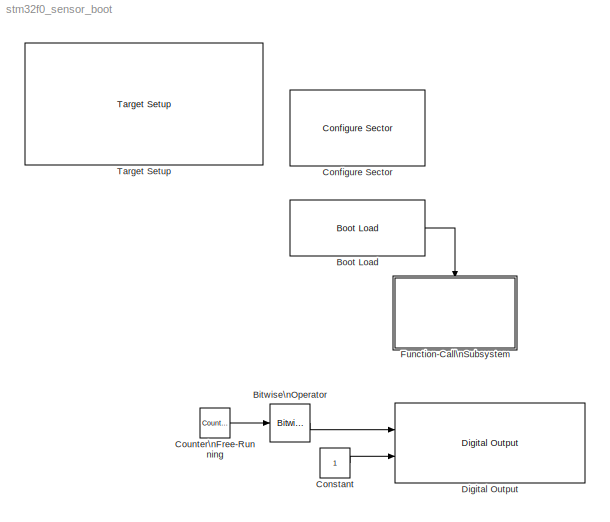
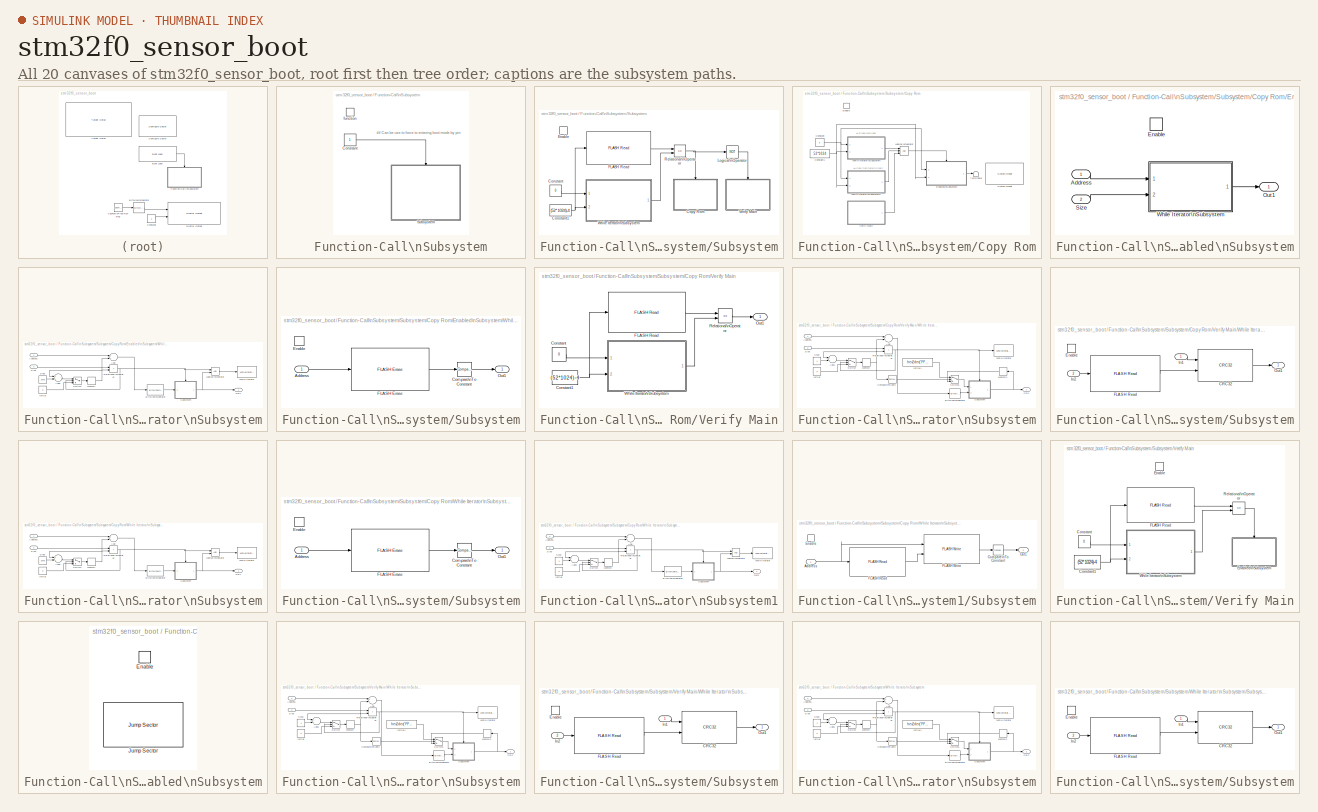
[diagram: thumbnail index - all 20 canvases of the model, root first then tree order]
MODEL stm32f0_sensor_boot
KIND model
CONFIG PreLoadFcn = waijung.modelPreload; % Required for working with Waijung Blockset. Do not remove.
BLOCK [Reference] Bitwise\nOperator  REF=simulink/Logic and Bit\nOperations/Bitwise\nOperator
  BitMask = 1
  BitMaskRealWorld = Stored Integer
  NumInputPorts = 1
  Ports = [1, 1]
  SourceBlock = simulink/Logic and Bit\nOperations/Bitwise\nOperator
  SourceType = Bitwise Operator
  UseBitMask = on
  logicop = AND
BLOCK [Reference] Boot Load  REF=stm32f0_boot_lib/Boot Load
  Ports = [0, 1]
  SourceBlock = stm32f0_boot_lib/Boot Load
  SourceType = stm32f0_boot
  blockid = BootLoad
  compat = 0
  conf = Boot
  confstr = [\"80A0000\",\"9\",\"8000000\"]
  enableisr = on
  flashlength = 0x100000
  flashorigin = 0x8000000
  inputarray = []
  inputlabelarray = {}
  outputarray = [7]
  outputlabelarray = {'Call ISR'}
  sampletime = -1
  sampletimestr = 0.1
  usersector = Sector 9: 0x080A0000 - 0x080BFFFF
BLOCK [Reference] Configure Sector  REF=stm32f0_boot_lib/Configure Sector
  Ports = []
  SourceBlock = stm32f0_boot_lib/Configure Sector
  SourceType = stm32f0_boot
  blockid = ConfigureSector
  compat = 0
  conf = Configure
  confstr = [\"8020000\",\"5\",\"8000000\"]
  enableisr = off
  flashlength = 0x004000
  flashorigin = 0x8000000
  inputarray = []
  inputlabelarray = {}
  outputarray = []
  outputlabelarray = {}
  sampletime = -1
  sampletimestr = 0.1
  usersector = Sector 5: 0x08020000 - 0x0803FFFF
BLOCK [Constant] Constant
  OutDataType = fixdt(1, 16)
  OutScaling = 2^0
BLOCK [Reference] Counter\nFree-Running  REF=simulink/Sources/Counter\nFree-Running
  FunctionWithSeparateData = off
  NumBits = 16
  Ports = [0, 1]
  RTWMemSecDataConstants = Inherit from model
  RTWMemSecDataInternal = Inherit from model
  RTWMemSecDataParameters = Inherit from model
  RTWMemSecFuncExecute = Inherit from model
  RTWMemSecFuncInitTerm = Inherit from model
  ShowPortLabels = FromPortIcon
  SourceBlock = simulink/Sources/Counter\nFree-Running
  SourceType = Counter Free-Running
  SystemSampleTime = -1
  tsamp = -1
BLOCK [Reference] Digital Output  REF=stm32f0_io_lib/Digital Output
  Ports = [2]
  SourceBlock = stm32f0_io_lib/Digital Output
  SourceType = stm32f0_digital_output
  bitbandingstr = \n#define DigitalOutput_B14 Peripheral_BB(GPIOB->ODR, 14)  /* Output pin */\n#define DigitalOutput_B15 Peripheral_BB(GPIOB->ODR, 15)  /* Output pin */
  blockid = DigitalOutput
  cinputportlabel = In1, In2
  coutputportlabel = 0
  enablecustomportlabel = off
  pinstr = GPIO_Pin_14 | GPIO_Pin_15
  port = B
  porttype = Push Pull
  porttypestr = PP
  sampletime = 0.1
  sampletimestr = 0.1
  speed = 2
  use_bitband = off
  use_pin0 = off
  use_pin1 = off
  use_pin10 = off
  use_pin11 = off
  use_pin12 = off
  use_pin13 = off
  use_pin14 = on
  use_pin15 = on
  use_pin2 = off
  use_pin3 = off
  use_pin4 = off
  use_pin5 = off
  use_pin6 = off
  use_pin7 = off
  use_pin8 = off
  use_pin9 = off
  usedpinarray = [0  0  0  0  0  0  0  0  0  0  0  0  0  0  1  1]
BLOCK [SubSystem] Function-Call\nSubsystem
  FunctionWithSeparateData = off
  MaskHideContents = off
  MinAlgLoopOccurrences = off
  Opaque = off
  Ports = [0, 0, 0, 1]
  PropExecContextOutsideSubsystem = off
  RTWSystemCode = Auto
  RequestExecContextInheritance = off
  TreatAsAtomicUnit = on
BLOCK [Constant] Function-Call\nSubsystem/Constant
  OutDataType = fixdt(1, 16)
  OutDataTypeMode = uint8
  OutDataTypeStr = uint8
  OutScaling = 2^0
BLOCK [SubSystem] Function-Call\nSubsystem/Subsystem
  FunctionWithSeparateData = off
  MaskHideContents = off
  MinAlgLoopOccurrences = off
  Opaque = off
  Ports = [0, 0, 1]
  PropExecContextOutsideSubsystem = off
  RTWSystemCode = Auto
  RequestExecContextInheritance = off
BLOCK [Constant] Function-Call\nSubsystem/Subsystem/Constant
  OutDataType = fixdt(1, 16)
  OutDataTypeMode = uint32
  OutDataTypeStr = uint32
  OutScaling = 2^0
  Value = 0
BLOCK [Constant] Function-Call\nSubsystem/Subsystem/Constant1
  OutDataType = fixdt(1, 16)
  OutDataTypeMode = uint32
  OutDataTypeStr = uint32
  OutScaling = 2^0
  Value = (52*1024)-4
BLOCK [SubSystem] Function-Call\nSubsystem/Subsystem/Copy Rom
  FunctionWithSeparateData = off
  MaskHideContents = off
  MinAlgLoopOccurrences = off
  Opaque = off
  Ports = [0, 0, 1]
  PropExecContextOutsideSubsystem = off
  RTWSystemCode = Auto
  RequestExecContextInheritance = off
  TreatAsAtomicUnit = on
BLOCK [Constant] Function-Call\nSubsystem/Subsystem/Copy Rom/Constant
  OutDataType = fixdt(1, 16)
  OutDataTypeMode = uint32
  OutDataTypeStr = uint32
  OutScaling = 2^0
  Value = 0
BLOCK [Constant] Function-Call\nSubsystem/Subsystem/Copy Rom/Constant1
  OutDataType = fixdt(1, 16)
  OutDataTypeMode = uint32
  OutDataTypeStr = uint32
  OutScaling = 2^0
  Value = 52*1024
BLOCK [EnablePort] Function-Call\nSubsystem/Subsystem/Copy Rom/Enable
  Ports = []
BLOCK [SubSystem] Function-Call\nSubsystem/Subsystem/Copy Rom/Enabled\nSubsystem
  FunctionWithSeparateData = off
  MaskHideContents = off
  MinAlgLoopOccurrences = off
  Opaque = off
  Ports = [2, 1, 1]
  Priority = 0
  PropExecContextOutsideSubsystem = off
  RTWSystemCode = Auto
  RequestExecContextInheritance = off
  TreatAsAtomicUnit = on
BLOCK [Inport] Function-Call\nSubsystem/Subsystem/Copy Rom/Enabled\nSubsystem/Address
  IconDisplay = Port number
  OutDataType = fixdt(1, 16)
  OutScaling = 2^0
BLOCK [EnablePort] Function-Call\nSubsystem/Subsystem/Copy Rom/Enabled\nSubsystem/Enable
  Ports = []
BLOCK [Outport] Function-Call\nSubsystem/Subsystem/Copy Rom/Enabled\nSubsystem/Out1
  IconDisplay = Port number
  OutDataType = fixdt(1, 16)
  OutScaling = 2^0
BLOCK [Inport] Function-Call\nSubsystem/Subsystem/Copy Rom/Enabled\nSubsystem/Size
  IconDisplay = Port number
  OutDataType = fixdt(1, 16)
  OutScaling = 2^0
  Port = 2
BLOCK [SubSystem] Function-Call\nSubsystem/Subsystem/Copy Rom/Enabled\nSubsystem/While Iterator\nSubsystem
  FunctionWithSeparateData = off
  MaskHideContents = off
  MinAlgLoopOccurrences = off
  Opaque = off
  Ports = [2, 1]
  PropExecContextOutsideSubsystem = off
  RTWSystemCode = Auto
  RequestExecContextInheritance = off
  TreatAsAtomicUnit = on
BLOCK [Sum] Function-Call\nSubsystem/Subsystem/Copy Rom/Enabled\nSubsystem/While Iterator\nSubsystem/Add
  InputSameDT = off
  OutDataType = fixdt(1, 16)
  OutDataTypeMode = Inherit via internal rule
  OutDataTypeStr = Inherit: Inherit via internal rule
  OutScaling = 2^-10
  Ports = [2, 1]
  SaturateOnIntegerOverflow = off
BLOCK [Sum] Function-Call\nSubsystem/Subsystem/Copy Rom/Enabled\nSubsystem/While Iterator\nSubsystem/Add1
  InputSameDT = off
  OutDataType = fixdt(1, 16)
  OutDataTypeMode = Inherit via internal rule
  OutDataTypeStr = Inherit: Inherit via internal rule
  OutScaling = 2^-10
  Ports = [2, 1]
  SaturateOnIntegerOverflow = off
BLOCK [Inport] Function-Call\nSubsystem/Subsystem/Copy Rom/Enabled\nSubsystem/While Iterator\nSubsystem/Address
  IconDisplay = Port number
  OutDataType = fixdt(1, 16)
  OutScaling = 2^0
BLOCK [Reference] Function-Call\nSubsystem/Subsystem/Copy Rom/Enabled\nSubsystem/While Iterator\nSubsystem/Bitwise\nOperator  REF=simulink/Logic and Bit\nOperations/Bitwise\nOperator
  BitMask = hex2dec('0000FFFF')
  BitMaskRealWorld = Stored Integer
  NumInputPorts = 1
  Ports = [1, 1]
  SourceBlock = simulink/Logic and Bit\nOperations/Bitwise\nOperator
  SourceType = Bitwise Operator
  UseBitMask = on
  logicop = AND
BLOCK [Constant] Function-Call\nSubsystem/Subsystem/Copy Rom/Enabled\nSubsystem/While Iterator\nSubsystem/Initial
  OutDataType = fixdt(1, 16)
  OutDataTypeMode = uint32
  OutDataTypeStr = uint32
  OutScaling = 2^0
  Value = 0
BLOCK [Logic] Function-Call\nSubsystem/Subsystem/Copy Rom/Enabled\nSubsystem/While Iterator\nSubsystem/Logical\nOperator
  AllPortsSameDT = off
  LogicDataType = fixdt(0, 8)
  OutDataTypeMode = boolean
  OutDataTypeStr = boolean
  Ports = [2, 1]
BLOCK [Memory] Function-Call\nSubsystem/Subsystem/Copy Rom/Enabled\nSubsystem/While Iterator\nSubsystem/Memory
  InheritSampleTime = on
  LinearizeMemory = on
BLOCK [Outport] Function-Call\nSubsystem/Subsystem/Copy Rom/Enabled\nSubsystem/While Iterator\nSubsystem/Out1
  IconDisplay = Port number
  OutDataType = fixdt(1, 16)
  OutScaling = 2^0
BLOCK [RelationalOperator] Function-Call\nSubsystem/Subsystem/Copy Rom/Enabled\nSubsystem/While Iterator\nSubsystem/Relational\nOperator
  InputSameDT = off
  LogicDataType = fixdt(0, 8)
  LogicOutDataTypeMode = boolean
  Operator = >
  OutDataTypeStr = boolean
BLOCK [Inport] Function-Call\nSubsystem/Subsystem/Copy Rom/Enabled\nSubsystem/While Iterator\nSubsystem/Size
  IconDisplay = Port number
  OutDataType = fixdt(1, 16)
  OutScaling = 2^0
  Port = 2
BLOCK [Constant] Function-Call\nSubsystem/Subsystem/Copy Rom/Enabled\nSubsystem/While Iterator\nSubsystem/Step
  OutDataType = fixdt(1, 16)
  OutDataTypeMode = uint32
  OutDataTypeStr = uint32
  OutScaling = 2^0
  Value = 2048
BLOCK [SubSystem] Function-Call\nSubsystem/Subsystem/Copy Rom/Enabled\nSubsystem/While Iterator\nSubsystem/Subsystem
  FunctionWithSeparateData = off
  MaskHideContents = off
  MinAlgLoopOccurrences = off
  Opaque = off
  Ports = [1, 1, 1]
  PropExecContextOutsideSubsystem = off
  RTWSystemCode = Auto
  RequestExecContextInheritance = off
BLOCK [Inport] Function-Call\nSubsystem/Subsystem/Copy Rom/Enabled\nSubsystem/While Iterator\nSubsystem/Subsystem/Address
  IconDisplay = Port number
BLOCK [Reference] Function-Call\nSubsystem/Subsystem/Copy Rom/Enabled\nSubsystem/While Iterator\nSubsystem/Subsystem/Compare\nTo Constant  REF=simulink/Logic and Bit\nOperations/Compare\nTo Constant
  FunctionWithSeparateData = off
  LogicOutDataTypeMode = uint8
  Ports = [1, 1]
  RTWMemSecDataConstants = Inherit from model
  RTWMemSecDataInternal = Inherit from model
  RTWMemSecDataParameters = Inherit from model
  RTWMemSecFuncExecute = Inherit from model
  RTWMemSecFuncInitTerm = Inherit from model
  ShowPortLabels = FromPortIcon
  SourceBlock = simulink/Logic and Bit\nOperations/Compare\nTo Constant
  SourceType = Compare To Constant
  SystemSampleTime = -1
  ZeroCross = off
  const = 4
  relop = ==
BLOCK [EnablePort] Function-Call\nSubsystem/Subsystem/Copy Rom/Enabled\nSubsystem/While Iterator\nSubsystem/Subsystem/Enable
  Ports = []
BLOCK [Reference] Function-Call\nSubsystem/Subsystem/Copy Rom/Enabled\nSubsystem/While Iterator\nSubsystem/Subsystem/FLASH Erase  REF=stm32f0_flash_lib/FLASH Erase
  Ports = [1, 1]
  SourceBlock = stm32f0_flash_lib/FLASH Erase
  SourceType = stm32f0_flash
  blockid = FunctionCallSubsystemSubsystemCopyRomEnabledSubsystemWhileIteratorSubsystemSubsystemFLASHErase
  cinputportlabel = 0
  compat = 0
  conf = Erase
  datatype = int32
  enablecustomportlabel = off
  enablestatus = on
  filename = 'stm32f0_sensor_boot.flash'
  inputportlabel = {'Page Offset'}
  inputporttype = [7]
  inputportwidth = []
  optionstring = [\"8011000\",\"0\"]
  outputportlabel = {'Status'}
  outputporttype = [3]
  outputportwidth = []
  pagesize = 2k
  portpinstr = 0
  sampletime = inf
  startaddress = 0x8011000
BLOCK [Outport] Function-Call\nSubsystem/Subsystem/Copy Rom/Enabled\nSubsystem/While Iterator\nSubsystem/Subsystem/Out1
  IconDisplay = Port number
  OutDataType = fixdt(1, 16)
  OutScaling = 2^0
BLOCK [Switch] Function-Call\nSubsystem/Subsystem/Copy Rom/Enabled\nSubsystem/While Iterator\nSubsystem/Switch
  Criteria = u2 ~= 0
  InputSameDT = off
  OutDataType = fixdt(1, 16)
  OutScaling = 2^0
  SaturateOnIntegerOverflow = off
BLOCK [WhileIterator] Function-Call\nSubsystem/Subsystem/Copy Rom/Enabled\nSubsystem/While Iterator\nSubsystem/While Iterator
  MaxIters = -1
  Ports = [1]
  WhileBlockType = do-while
BLOCK [Logic] Function-Call\nSubsystem/Subsystem/Copy Rom/Logical\nOperator
  AllPortsSameDT = off
  Inputs = 3
  LogicDataType = fixdt(0, 8)
  OutDataTypeMode = boolean
  OutDataTypeStr = boolean
  Ports = [3, 1]
BLOCK [Reference] Function-Call\nSubsystem/Subsystem/Copy Rom/System Reset  REF=stm32f0_reset_lib/System Reset
  Ports = []
  Priority = 1
  SourceBlock = stm32f0_reset_lib/System Reset
  SourceType = stm32f0_reset
  blockid = FunctionCallSubsystemSubsystemCopyRomSystemReset
  compat = 0
  conf = <empty>
  confstr = [\"Param1\",\"Param1\"]
  inputarray = []
  inputlabelarray = {}
  outputarray = []
  outputlabelarray = {}
  sampletime = inf
  sampletimestr = -1
BLOCK [Terminator] Function-Call\nSubsystem/Subsystem/Copy Rom/Terminator
BLOCK [SubSystem] Function-Call\nSubsystem/Subsystem/Copy Rom/Verify Main
  FunctionWithSeparateData = off
  MaskHideContents = off
  MinAlgLoopOccurrences = off
  Opaque = off
  Ports = [0, 1]
  Priority = 4
  PropExecContextOutsideSubsystem = off
  RTWSystemCode = Auto
  RequestExecContextInheritance = off
  TreatAsAtomicUnit = on
BLOCK [Constant] Function-Call\nSubsystem/Subsystem/Copy Rom/Verify Main/Constant
  OutDataType = fixdt(1, 16)
  OutDataTypeMode = uint32
  OutDataTypeStr = uint32
  OutScaling = 2^0
  Value = 0
BLOCK [Constant] Function-Call\nSubsystem/Subsystem/Copy Rom/Verify Main/Constant1
  OutDataType = fixdt(1, 16)
  OutDataTypeMode = uint32
  OutDataTypeStr = uint32
  OutScaling = 2^0
  Value = (52*1024)-4
BLOCK [Reference] Function-Call\nSubsystem/Subsystem/Copy Rom/Verify Main/FLASH Read  REF=stm32f0_flash_lib/FLASH Read
  Ports = [1, 1]
  SourceBlock = stm32f0_flash_lib/FLASH Read
  SourceType = stm32f0_flash
  blockid = FunctionCallSubsystemSubsystemCopyRomVerifyMainFLASHRead
  cinputportlabel = 0
  compat = 0
  conf = Read
  datatype = uint32
  enablecustomportlabel = off
  enablestatus = off
  filename = 'stm32f0_sensor_boot.flash'
  inputportlabel = {'Offset'}
  inputporttype = [7]
  inputportwidth = []
  optionstring = [\"8004000\",\"0\"]
  outputportlabel = {'Data'}
  outputporttype = [7]
  outputportwidth = []
  pagesize = 2k
  portpinstr = 0
  sampletime = inf
  startaddress = 0x8004000
BLOCK [Outport] Function-Call\nSubsystem/Subsystem/Copy Rom/Verify Main/Out1
  IconDisplay = Port number
  OutDataType = fixdt(1, 16)
  OutScaling = 2^0
BLOCK [RelationalOperator] Function-Call\nSubsystem/Subsystem/Copy Rom/Verify Main/Relational\nOperator
  InputSameDT = off
  LogicDataType = fixdt(0, 8)
  LogicOutDataTypeMode = boolean
  Operator = ==
  OutDataTypeStr = boolean
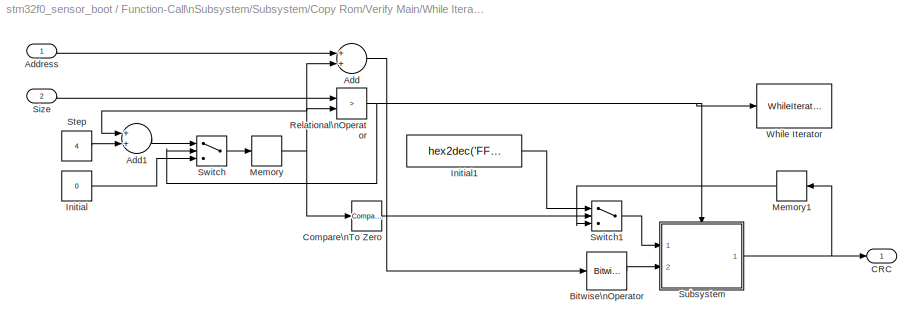
BLOCK [SubSystem] Function-Call\nSubsystem/Subsystem/Copy Rom/Verify Main/While Iterator\nSubsystem
  FunctionWithSeparateData = off
  MaskHideContents = off
  MinAlgLoopOccurrences = off
  Opaque = off
  Ports = [2, 1]
  PropExecContextOutsideSubsystem = off
  RTWSystemCode = Auto
  RequestExecContextInheritance = off
  TreatAsAtomicUnit = on
BLOCK [Sum] Function-Call\nSubsystem/Subsystem/Copy Rom/Verify Main/While Iterator\nSubsystem/Add
  InputSameDT = off
  OutDataType = fixdt(1, 16)
  OutDataTypeMode = Inherit via internal rule
  OutDataTypeStr = Inherit: Inherit via internal rule
  OutScaling = 2^-10
  Ports = [2, 1]
  SaturateOnIntegerOverflow = off
BLOCK [Sum] Function-Call\nSubsystem/Subsystem/Copy Rom/Verify Main/While Iterator\nSubsystem/Add1
  InputSameDT = off
  OutDataType = fixdt(1, 16)
  OutDataTypeMode = Inherit via internal rule
  OutDataTypeStr = Inherit: Inherit via internal rule
  OutScaling = 2^-10
  Ports = [2, 1]
  SaturateOnIntegerOverflow = off
BLOCK [Inport] Function-Call\nSubsystem/Subsystem/Copy Rom/Verify Main/While Iterator\nSubsystem/Address
  IconDisplay = Port number
  OutDataType = fixdt(1, 16)
  OutScaling = 2^0
BLOCK [Reference] Function-Call\nSubsystem/Subsystem/Copy Rom/Verify Main/While Iterator\nSubsystem/Bitwise\nOperator  REF=simulink/Logic and Bit\nOperations/Bitwise\nOperator
  BitMask = hex2dec('01FFFFFF')
  BitMaskRealWorld = Stored Integer
  NumInputPorts = 1
  Ports = [1, 1]
  SourceBlock = simulink/Logic and Bit\nOperations/Bitwise\nOperator
  SourceType = Bitwise Operator
  UseBitMask = on
  logicop = AND
BLOCK [Outport] Function-Call\nSubsystem/Subsystem/Copy Rom/Verify Main/While Iterator\nSubsystem/CRC
  IconDisplay = Port number
  OutDataType = fixdt(1, 16)
  OutScaling = 2^0
BLOCK [Reference] Function-Call\nSubsystem/Subsystem/Copy Rom/Verify Main/While Iterator\nSubsystem/Compare\nTo Zero  REF=simulink/Logic and Bit\nOperations/Compare\nTo Zero
  FunctionWithSeparateData = off
  LogicOutDataTypeMode = uint8
  Ports = [1, 1]
  RTWMemSecDataConstants = Inherit from model
  RTWMemSecDataInternal = Inherit from model
  RTWMemSecDataParameters = Inherit from model
  RTWMemSecFuncExecute = Inherit from model
  RTWMemSecFuncInitTerm = Inherit from model
  ShowPortLabels = FromPortIcon
  SourceBlock = simulink/Logic and Bit\nOperations/Compare\nTo Zero
  SourceType = Compare To Zero
  SystemSampleTime = -1
  ZeroCross = off
  relop = ==
BLOCK [Constant] Function-Call\nSubsystem/Subsystem/Copy Rom/Verify Main/While Iterator\nSubsystem/Initial
  OutDataType = fixdt(1, 16)
  OutDataTypeMode = uint32
  OutDataTypeStr = uint32
  OutScaling = 2^0
  Value = 0
BLOCK [Constant] Function-Call\nSubsystem/Subsystem/Copy Rom/Verify Main/While Iterator\nSubsystem/Initial1
  OutDataType = fixdt(1, 16)
  OutDataTypeMode = uint32
  OutDataTypeStr = uint32
  OutScaling = 2^0
  Value = hex2dec('FFFFFFFF')
BLOCK [Memory] Function-Call\nSubsystem/Subsystem/Copy Rom/Verify Main/While Iterator\nSubsystem/Memory
  InheritSampleTime = on
  LinearizeMemory = on
BLOCK [Memory] Function-Call\nSubsystem/Subsystem/Copy Rom/Verify Main/While Iterator\nSubsystem/Memory1
  InheritSampleTime = on
  LinearizeMemory = on
BLOCK [RelationalOperator] Function-Call\nSubsystem/Subsystem/Copy Rom/Verify Main/While Iterator\nSubsystem/Relational\nOperator
  InputSameDT = off
  LogicDataType = fixdt(0, 8)
  LogicOutDataTypeMode = boolean
  Operator = >
  OutDataTypeStr = boolean
BLOCK [Inport] Function-Call\nSubsystem/Subsystem/Copy Rom/Verify Main/While Iterator\nSubsystem/Size
  IconDisplay = Port number
  OutDataType = fixdt(1, 16)
  OutScaling = 2^0
  Port = 2
BLOCK [Constant] Function-Call\nSubsystem/Subsystem/Copy Rom/Verify Main/While Iterator\nSubsystem/Step
  OutDataType = fixdt(1, 16)
  OutDataTypeMode = uint32
  OutDataTypeStr = uint32
  OutScaling = 2^0
  Value = 4
BLOCK [SubSystem] Function-Call\nSubsystem/Subsystem/Copy Rom/Verify Main/While Iterator\nSubsystem/Subsystem
  FunctionWithSeparateData = off
  MaskHideContents = off
  MinAlgLoopOccurrences = off
  Opaque = off
  Ports = [2, 1, 1]
  PropExecContextOutsideSubsystem = off
  RTWSystemCode = Auto
  RequestExecContextInheritance = off
BLOCK [Reference] Function-Call\nSubsystem/Subsystem/Copy Rom/Verify Main/While Iterator\nSubsystem/Subsystem/CRC32  REF=waijung_crc_lib/CRC32
  Ports = [2, 1]
  SourceBlock = waijung_crc_lib/CRC32
  SourceType = waijung_crc
  blockid = FunctionCallSubsystemSubsystemCopyRomVerifyMainWhileIteratorSubsystemSubsystemCRC32
  cinputportlabel = 0
  compat = 0
  conf = <empty>
  enablecustomportlabel = off
  inputportlabel = {'Initial','Value'}
  inputporttype = [7 7]
  inputportwidth = [1 -1]
  optionstring = [\"Param1\",\"Param1\"]
  outputportlabel = {'Output'}
  outputporttype = [7]
  outputportwidth = []
  portpinstr = 0
  sampletime = -1
BLOCK [EnablePort] Function-Call\nSubsystem/Subsystem/Copy Rom/Verify Main/While Iterator\nSubsystem/Subsystem/Enable
  Ports = []
BLOCK [Reference] Function-Call\nSubsystem/Subsystem/Copy Rom/Verify Main/While Iterator\nSubsystem/Subsystem/FLASH Read  REF=stm32f0_flash_lib/FLASH Read
  Ports = [1, 1]
  SourceBlock = stm32f0_flash_lib/FLASH Read
  SourceType = stm32f0_flash
  blockid = FunctionCallSubsystemSubsystemCopyRomVerifyMainWhileIteratorSubsystemSubsystemFLASHRead
  cinputportlabel = 0
  compat = 0
  conf = Read
  datatype = uint32
  enablecustomportlabel = off
  enablestatus = off
  filename = 'stm32f0_sensor_boot.flash'
  inputportlabel = {'Offset'}
  inputporttype = [7]
  inputportwidth = []
  optionstring = [\"8004000\",\"0\"]
  outputportlabel = {'Data'}
  outputporttype = [7]
  outputportwidth = []
  pagesize = 2k
  portpinstr = 0
  sampletime = inf
  startaddress = 0x8004000
BLOCK [Inport] Function-Call\nSubsystem/Subsystem/Copy Rom/Verify Main/While Iterator\nSubsystem/Subsystem/In1
  IconDisplay = Port number
BLOCK [Inport] Function-Call\nSubsystem/Subsystem/Copy Rom/Verify Main/While Iterator\nSubsystem/Subsystem/In2
  IconDisplay = Port number
  Port = 2
BLOCK [Outport] Function-Call\nSubsystem/Subsystem/Copy Rom/Verify Main/While Iterator\nSubsystem/Subsystem/Out1
  IconDisplay = Port number
BLOCK [Switch] Function-Call\nSubsystem/Subsystem/Copy Rom/Verify Main/While Iterator\nSubsystem/Switch
  Criteria = u2 ~= 0
  InputSameDT = off
  OutDataType = fixdt(1, 16)
  OutScaling = 2^0
  SaturateOnIntegerOverflow = off
BLOCK [Switch] Function-Call\nSubsystem/Subsystem/Copy Rom/Verify Main/While Iterator\nSubsystem/Switch1
  Criteria = u2 ~= 0
  InputSameDT = off
  OutDataType = fixdt(1, 16)
  OutScaling = 2^0
  SaturateOnIntegerOverflow = off
BLOCK [WhileIterator] Function-Call\nSubsystem/Subsystem/Copy Rom/Verify Main/While Iterator\nSubsystem/While Iterator
  MaxIters = -1
  Ports = [1]
  WhileBlockType = do-while
BLOCK [SubSystem] Function-Call\nSubsystem/Subsystem/Copy Rom/While Iterator\nSubsystem
  FunctionWithSeparateData = off
  MaskHideContents = off
  MinAlgLoopOccurrences = off
  Opaque = off
  Ports = [2, 1]
  Priority = 2
  PropExecContextOutsideSubsystem = off
  RTWSystemCode = Auto
  RequestExecContextInheritance = off
  TreatAsAtomicUnit = on
BLOCK [Sum] Function-Call\nSubsystem/Subsystem/Copy Rom/While Iterator\nSubsystem/Add
  InputSameDT = off
  OutDataType = fixdt(1, 16)
  OutDataTypeMode = Inherit via internal rule
  OutDataTypeStr = Inherit: Inherit via internal rule
  OutScaling = 2^-10
  Ports = [2, 1]
  SaturateOnIntegerOverflow = off
BLOCK [Sum] Function-Call\nSubsystem/Subsystem/Copy Rom/While Iterator\nSubsystem/Add1
  InputSameDT = off
  OutDataType = fixdt(1, 16)
  OutDataTypeMode = Inherit via internal rule
  OutDataTypeStr = Inherit: Inherit via internal rule
  OutScaling = 2^-10
  Ports = [2, 1]
  SaturateOnIntegerOverflow = off
BLOCK [Inport] Function-Call\nSubsystem/Subsystem/Copy Rom/While Iterator\nSubsystem/Address
  IconDisplay = Port number
  OutDataType = fixdt(1, 16)
  OutScaling = 2^0
BLOCK [Reference] Function-Call\nSubsystem/Subsystem/Copy Rom/While Iterator\nSubsystem/Bitwise\nOperator  REF=simulink/Logic and Bit\nOperations/Bitwise\nOperator
  BitMask = hex2dec('0000FFFF')
  BitMaskRealWorld = Stored Integer
  NumInputPorts = 1
  Ports = [1, 1]
  SourceBlock = simulink/Logic and Bit\nOperations/Bitwise\nOperator
  SourceType = Bitwise Operator
  UseBitMask = on
  logicop = AND
BLOCK [Constant] Function-Call\nSubsystem/Subsystem/Copy Rom/While Iterator\nSubsystem/Initial
  OutDataType = fixdt(1, 16)
  OutDataTypeMode = uint32
  OutDataTypeStr = uint32
  OutScaling = 2^0
  Value = 0
BLOCK [Logic] Function-Call\nSubsystem/Subsystem/Copy Rom/While Iterator\nSubsystem/Logical\nOperator
  AllPortsSameDT = off
  LogicDataType = fixdt(0, 8)
  OutDataTypeMode = boolean
  OutDataTypeStr = boolean
  Ports = [2, 1]
BLOCK [Memory] Function-Call\nSubsystem/Subsystem/Copy Rom/While Iterator\nSubsystem/Memory
  InheritSampleTime = on
  LinearizeMemory = on
BLOCK [Outport] Function-Call\nSubsystem/Subsystem/Copy Rom/While Iterator\nSubsystem/Out1
  IconDisplay = Port number
  OutDataType = fixdt(1, 16)
  OutScaling = 2^0
BLOCK [RelationalOperator] Function-Call\nSubsystem/Subsystem/Copy Rom/While Iterator\nSubsystem/Relational\nOperator
  InputSameDT = off
  LogicDataType = fixdt(0, 8)
  LogicOutDataTypeMode = boolean
  Operator = >
  OutDataTypeStr = boolean
BLOCK [Inport] Function-Call\nSubsystem/Subsystem/Copy Rom/While Iterator\nSubsystem/Size
  IconDisplay = Port number
  OutDataType = fixdt(1, 16)
  OutScaling = 2^0
  Port = 2
BLOCK [Constant] Function-Call\nSubsystem/Subsystem/Copy Rom/While Iterator\nSubsystem/Step
  OutDataType = fixdt(1, 16)
  OutDataTypeMode = uint32
  OutDataTypeStr = uint32
  OutScaling = 2^0
  Value = 2048
BLOCK [SubSystem] Function-Call\nSubsystem/Subsystem/Copy Rom/While Iterator\nSubsystem/Subsystem
  FunctionWithSeparateData = off
  MaskHideContents = off
  MinAlgLoopOccurrences = off
  Opaque = off
  Ports = [1, 1, 1]
  PropExecContextOutsideSubsystem = off
  RTWSystemCode = Auto
  RequestExecContextInheritance = off
BLOCK [Inport] Function-Call\nSubsystem/Subsystem/Copy Rom/While Iterator\nSubsystem/Subsystem/Address
  IconDisplay = Port number
BLOCK [Reference] Function-Call\nSubsystem/Subsystem/Copy Rom/While Iterator\nSubsystem/Subsystem/Compare\nTo Constant  REF=simulink/Logic and Bit\nOperations/Compare\nTo Constant
  FunctionWithSeparateData = off
  LogicOutDataTypeMode = uint8
  Ports = [1, 1]
  RTWMemSecDataConstants = Inherit from model
  RTWMemSecDataInternal = Inherit from model
  RTWMemSecDataParameters = Inherit from model
  RTWMemSecFuncExecute = Inherit from model
  RTWMemSecFuncInitTerm = Inherit from model
  ShowPortLabels = FromPortIcon
  SourceBlock = simulink/Logic and Bit\nOperations/Compare\nTo Constant
  SourceType = Compare To Constant
  SystemSampleTime = -1
  ZeroCross = off
  const = 4
  relop = ==
BLOCK [EnablePort] Function-Call\nSubsystem/Subsystem/Copy Rom/While Iterator\nSubsystem/Subsystem/Enable
  Ports = []
BLOCK [Reference] Function-Call\nSubsystem/Subsystem/Copy Rom/While Iterator\nSubsystem/Subsystem/FLASH Erase  REF=stm32f0_flash_lib/FLASH Erase
  Ports = [1, 1]
  SourceBlock = stm32f0_flash_lib/FLASH Erase
  SourceType = stm32f0_flash
  blockid = FunctionCallSubsystemSubsystemCopyRomWhileIteratorSubsystemSubsystemFLASHErase
  cinputportlabel = 0
  compat = 0
  conf = Erase
  datatype = int32
  enablecustomportlabel = off
  enablestatus = on
  filename = 'stm32f0_sensor_boot.flash'
  inputportlabel = {'Page Offset'}
  inputporttype = [7]
  inputportwidth = []
  optionstring = [\"8004000\",\"0\"]
  outputportlabel = {'Status'}
  outputporttype = [3]
  outputportwidth = []
  pagesize = 2k
  portpinstr = 0
  sampletime = inf
  startaddress = 0x8004000
BLOCK [Outport] Function-Call\nSubsystem/Subsystem/Copy Rom/While Iterator\nSubsystem/Subsystem/Out1
  IconDisplay = Port number
  OutDataType = fixdt(1, 16)
  OutScaling = 2^0
BLOCK [Switch] Function-Call\nSubsystem/Subsystem/Copy Rom/While Iterator\nSubsystem/Switch
  Criteria = u2 ~= 0
  InputSameDT = off
  OutDataType = fixdt(1, 16)
  OutScaling = 2^0
  SaturateOnIntegerOverflow = off
BLOCK [WhileIterator] Function-Call\nSubsystem/Subsystem/Copy Rom/While Iterator\nSubsystem/While Iterator
  MaxIters = -1
  Ports = [1]
  WhileBlockType = do-while
BLOCK [SubSystem] Function-Call\nSubsystem/Subsystem/Copy Rom/While Iterator\nSubsystem1
  FunctionWithSeparateData = off
  MaskHideContents = off
  MinAlgLoopOccurrences = off
  Opaque = off
  Ports = [2, 1]
  Priority = 3
  PropExecContextOutsideSubsystem = off
  RTWSystemCode = Auto
  RequestExecContextInheritance = off
  TreatAsAtomicUnit = on
BLOCK [Sum] Function-Call\nSubsystem/Subsystem/Copy Rom/While Iterator\nSubsystem1/Add
  InputSameDT = off
  OutDataType = fixdt(1, 16)
  OutDataTypeMode = Inherit via internal rule
  OutDataTypeStr = Inherit: Inherit via internal rule
  OutScaling = 2^-10
  Ports = [2, 1]
  SaturateOnIntegerOverflow = off
BLOCK [Sum] Function-Call\nSubsystem/Subsystem/Copy Rom/While Iterator\nSubsystem1/Add1
  InputSameDT = off
  OutDataType = fixdt(1, 16)
  OutDataTypeMode = Inherit via internal rule
  OutDataTypeStr = Inherit: Inherit via internal rule
  OutScaling = 2^-10
  Ports = [2, 1]
  SaturateOnIntegerOverflow = off
BLOCK [Inport] Function-Call\nSubsystem/Subsystem/Copy Rom/While Iterator\nSubsystem1/Address
  IconDisplay = Port number
  OutDataType = fixdt(1, 16)
  OutScaling = 2^0
BLOCK [Reference] Function-Call\nSubsystem/Subsystem/Copy Rom/While Iterator\nSubsystem1/Bitwise\nOperator  REF=simulink/Logic and Bit\nOperations/Bitwise\nOperator
  BitMask = hex2dec('0000FFFF')
  BitMaskRealWorld = Stored Integer
  NumInputPorts = 1
  Ports = [1, 1]
  SourceBlock = simulink/Logic and Bit\nOperations/Bitwise\nOperator
  SourceType = Bitwise Operator
  UseBitMask = on
  logicop = AND
BLOCK [Constant] Function-Call\nSubsystem/Subsystem/Copy Rom/While Iterator\nSubsystem1/Initial
  OutDataType = fixdt(1, 16)
  OutDataTypeMode = uint32
  OutDataTypeStr = uint32
  OutScaling = 2^0
  Value = 0
BLOCK [Logic] Function-Call\nSubsystem/Subsystem/Copy Rom/While Iterator\nSubsystem1/Logical\nOperator
  AllPortsSameDT = off
  LogicDataType = fixdt(0, 8)
  OutDataTypeMode = boolean
  OutDataTypeStr = boolean
  Ports = [2, 1]
BLOCK [Memory] Function-Call\nSubsystem/Subsystem/Copy Rom/While Iterator\nSubsystem1/Memory
  InheritSampleTime = on
  LinearizeMemory = on
BLOCK [Outport] Function-Call\nSubsystem/Subsystem/Copy Rom/While Iterator\nSubsystem1/Out1
  IconDisplay = Port number
  OutDataType = fixdt(1, 16)
  OutScaling = 2^0
BLOCK [RelationalOperator] Function-Call\nSubsystem/Subsystem/Copy Rom/While Iterator\nSubsystem1/Relational\nOperator
  InputSameDT = off
  LogicDataType = fixdt(0, 8)
  LogicOutDataTypeMode = boolean
  Operator = >
  OutDataTypeStr = boolean
BLOCK [Inport] Function-Call\nSubsystem/Subsystem/Copy Rom/While Iterator\nSubsystem1/Size
  IconDisplay = Port number
  OutDataType = fixdt(1, 16)
  OutScaling = 2^0
  Port = 2
BLOCK [Constant] Function-Call\nSubsystem/Subsystem/Copy Rom/While Iterator\nSubsystem1/Step
  OutDataType = fixdt(1, 16)
  OutDataTypeMode = uint32
  OutDataTypeStr = uint32
  OutScaling = 2^0
  Value = 4
BLOCK [SubSystem] Function-Call\nSubsystem/Subsystem/Copy Rom/While Iterator\nSubsystem1/Subsystem
  FunctionWithSeparateData = off
  MaskHideContents = off
  MinAlgLoopOccurrences = off
  Opaque = off
  Ports = [1, 1, 1]
  PropExecContextOutsideSubsystem = off
  RTWSystemCode = Auto
  RequestExecContextInheritance = off
BLOCK [Inport] Function-Call\nSubsystem/Subsystem/Copy Rom/While Iterator\nSubsystem1/Subsystem/Address
  IconDisplay = Port number
BLOCK [Reference] Function-Call\nSubsystem/Subsystem/Copy Rom/While Iterator\nSubsystem1/Subsystem/Compare\nTo Constant  REF=simulink/Logic and Bit\nOperations/Compare\nTo Constant
  FunctionWithSeparateData = off
  LogicOutDataTypeMode = uint8
  Ports = [1, 1]
  RTWMemSecDataConstants = Inherit from model
  RTWMemSecDataInternal = Inherit from model
  RTWMemSecDataParameters = Inherit from model
  RTWMemSecFuncExecute = Inherit from model
  RTWMemSecFuncInitTerm = Inherit from model
  ShowPortLabels = FromPortIcon
  SourceBlock = simulink/Logic and Bit\nOperations/Compare\nTo Constant
  SourceType = Compare To Constant
  SystemSampleTime = -1
  ZeroCross = off
  const = 4
  relop = ==
BLOCK [EnablePort] Function-Call\nSubsystem/Subsystem/Copy Rom/While Iterator\nSubsystem1/Subsystem/Enable
  Ports = []
BLOCK [Reference] Function-Call\nSubsystem/Subsystem/Copy Rom/While Iterator\nSubsystem1/Subsystem/FLASH Read  REF=stm32f0_flash_lib/FLASH Read
  Ports = [1, 1]
  SourceBlock = stm32f0_flash_lib/FLASH Read
  SourceType = stm32f0_flash
  blockid = FunctionCallSubsystemSubsystemCopyRomWhileIteratorSubsystem1SubsystemFLASHRead
  cinputportlabel = 0
  compat = 0
  conf = Read
  datatype = uint32
  enablecustomportlabel = off
  enablestatus = off
  filename = 'stm32f0_sensor_boot.flash'
  inputportlabel = {'Offset'}
  inputporttype = [7]
  inputportwidth = []
  optionstring = [\"8011000\",\"0\"]
  outputportlabel = {'Data'}
  outputporttype = [7]
  outputportwidth = []
  pagesize = 2k
  portpinstr = 0
  sampletime = inf
  startaddress = 0x8011000
BLOCK [Reference] Function-Call\nSubsystem/Subsystem/Copy Rom/While Iterator\nSubsystem1/Subsystem/FLASH Write  REF=stm32f0_flash_lib/FLASH Write
  Ports = [2, 1]
  SourceBlock = stm32f0_flash_lib/FLASH Write
  SourceType = stm32f0_flash
  blockid = FunctionCallSubsystemSubsystemCopyRomWhileIteratorSubsystem1SubsystemFLASHWrite
  cinputportlabel = 0
  compat = 0
  conf = Write
  datatype = uint32
  enablecustomportlabel = off
  enablestatus = on
  filename = 'stm32f0_sensor_boot.flash'
  inputportlabel = {'Offset','Data (uint32)'}
  inputporttype = [7 7]
  inputportwidth = []
  optionstring = [\"8004000\",\"0\"]
  outputportlabel = {'Status'}
  outputporttype = [3]
  outputportwidth = []
  pagesize = 2k
  portpinstr = 0
  sampletime = inf
  startaddress = 0x8004000
BLOCK [Outport] Function-Call\nSubsystem/Subsystem/Copy Rom/While Iterator\nSubsystem1/Subsystem/Out1
  IconDisplay = Port number
  OutDataType = fixdt(1, 16)
  OutScaling = 2^0
BLOCK [Switch] Function-Call\nSubsystem/Subsystem/Copy Rom/While Iterator\nSubsystem1/Switch
  Criteria = u2 ~= 0
  InputSameDT = off
  OutDataType = fixdt(1, 16)
  OutScaling = 2^0
  SaturateOnIntegerOverflow = off
BLOCK [WhileIterator] Function-Call\nSubsystem/Subsystem/Copy Rom/While Iterator\nSubsystem1/While Iterator
  MaxIters = -1
  Ports = [1]
  WhileBlockType = do-while
BLOCK [EnablePort] Function-Call\nSubsystem/Subsystem/Enable
  Ports = []
BLOCK [Reference] Function-Call\nSubsystem/Subsystem/FLASH Read  REF=stm32f0_flash_lib/FLASH Read
  Ports = [1, 1]
  SourceBlock = stm32f0_flash_lib/FLASH Read
  SourceType = stm32f0_flash
  blockid = FunctionCallSubsystemSubsystemFLASHRead
  cinputportlabel = 0
  compat = 0
  conf = Read
  datatype = uint32
  enablecustomportlabel = off
  enablestatus = off
  filename = 'stm32f0_sensor_boot.flash'
  inputportlabel = {'Offset'}
  inputporttype = [7]
  inputportwidth = []
  optionstring = [\"8011000\",\"0\"]
  outputportlabel = {'Data'}
  outputporttype = [7]
  outputportwidth = []
  pagesize = 2k
  portpinstr = 0
  sampletime = inf
  startaddress = 0x8011000
BLOCK [Logic] Function-Call\nSubsystem/Subsystem/Logical\nOperator
  AllPortsSameDT = off
  LogicDataType = fixdt(0, 8)
  Operator = NOT
  OutDataTypeMode = boolean
  OutDataTypeStr = boolean
  Ports = [1, 1]
BLOCK [RelationalOperator] Function-Call\nSubsystem/Subsystem/Relational\nOperator
  InputSameDT = off
  LogicDataType = fixdt(0, 8)
  LogicOutDataTypeMode = boolean
  Operator = ==
  OutDataTypeStr = boolean
BLOCK [SubSystem] Function-Call\nSubsystem/Subsystem/Verify Main
  FunctionWithSeparateData = off
  MaskHideContents = off
  MinAlgLoopOccurrences = off
  Opaque = off
  Ports = [0, 0, 1]
  PropExecContextOutsideSubsystem = off
  RTWSystemCode = Auto
  RequestExecContextInheritance = off
  TreatAsAtomicUnit = on
BLOCK [Constant] Function-Call\nSubsystem/Subsystem/Verify Main/Constant
  OutDataType = fixdt(1, 16)
  OutDataTypeMode = uint32
  OutDataTypeStr = uint32
  OutScaling = 2^0
  Value = 0
BLOCK [Constant] Function-Call\nSubsystem/Subsystem/Verify Main/Constant1
  OutDataType = fixdt(1, 16)
  OutDataTypeMode = uint32
  OutDataTypeStr = uint32
  OutScaling = 2^0
  Value = (52*1024)-4
BLOCK [EnablePort] Function-Call\nSubsystem/Subsystem/Verify Main/Enable
  Ports = []
BLOCK [SubSystem] Function-Call\nSubsystem/Subsystem/Verify Main/Enabled\nSubsystem
  FunctionWithSeparateData = off
  MaskHideContents = off
  MinAlgLoopOccurrences = off
  Opaque = off
  Ports = [0, 0, 1]
  PropExecContextOutsideSubsystem = off
  RTWSystemCode = Auto
  RequestExecContextInheritance = off
  TreatAsAtomicUnit = on
BLOCK [EnablePort] Function-Call\nSubsystem/Subsystem/Verify Main/Enabled\nSubsystem/Enable
  Ports = []
BLOCK [Reference] Function-Call\nSubsystem/Subsystem/Verify Main/Enabled\nSubsystem/Jump Sector  REF=stm32f0_boot_lib/Jump Sector
  Ports = []
  SourceBlock = stm32f0_boot_lib/Jump Sector
  SourceType = stm32f0_boot
  blockid = FunctionCallSubsystemSubsystemVerifyMainEnabledSubsystemJumpSector
  compat = 0
  conf = Goto
  confstr = [\"8004000\",\"8\",\"8000000\"]
  enableisr = off
  flashlength = 0x100000
  flashorigin = 0x8000000
  inputarray = []
  inputlabelarray = {}
  outputarray = []
  outputlabelarray = {}
  sampletime = inf
  sampletimestr = -1
  usersector = Sector 8: 0x8004000 - 0x80047FF
BLOCK [Reference] Function-Call\nSubsystem/Subsystem/Verify Main/FLASH Read  REF=stm32f0_flash_lib/FLASH Read
  Ports = [1, 1]
  SourceBlock = stm32f0_flash_lib/FLASH Read
  SourceType = stm32f0_flash
  blockid = FunctionCallSubsystemSubsystemVerifyMainFLASHRead
  cinputportlabel = 0
  compat = 0
  conf = Read
  datatype = uint32
  enablecustomportlabel = off
  enablestatus = off
  filename = 'stm32f0_sensor_boot.flash'
  inputportlabel = {'Offset'}
  inputporttype = [7]
  inputportwidth = []
  optionstring = [\"8004000\",\"0\"]
  outputportlabel = {'Data'}
  outputporttype = [7]
  outputportwidth = []
  pagesize = 2k
  portpinstr = 0
  sampletime = inf
  startaddress = 0x8004000
BLOCK [RelationalOperator] Function-Call\nSubsystem/Subsystem/Verify Main/Relational\nOperator
  InputSameDT = off
  LogicDataType = fixdt(0, 8)
  LogicOutDataTypeMode = boolean
  Operator = ==
  OutDataTypeStr = boolean
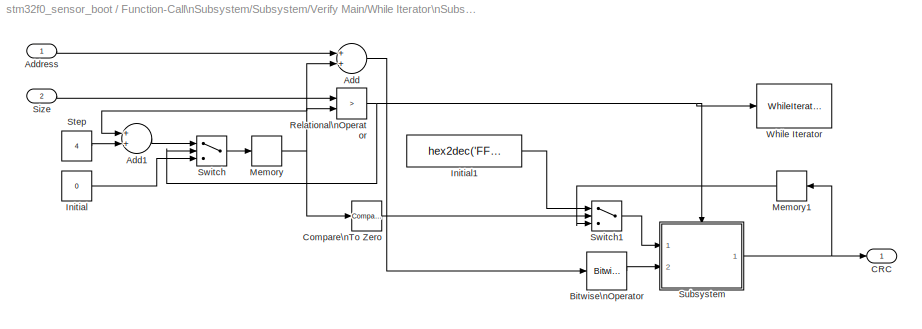
BLOCK [SubSystem] Function-Call\nSubsystem/Subsystem/Verify Main/While Iterator\nSubsystem
  FunctionWithSeparateData = off
  MaskHideContents = off
  MinAlgLoopOccurrences = off
  Opaque = off
  Ports = [2, 1]
  PropExecContextOutsideSubsystem = off
  RTWSystemCode = Auto
  RequestExecContextInheritance = off
  TreatAsAtomicUnit = on
BLOCK [Sum] Function-Call\nSubsystem/Subsystem/Verify Main/While Iterator\nSubsystem/Add
  InputSameDT = off
  OutDataType = fixdt(1, 16)
  OutDataTypeMode = Inherit via internal rule
  OutDataTypeStr = Inherit: Inherit via internal rule
  OutScaling = 2^-10
  Ports = [2, 1]
  SaturateOnIntegerOverflow = off
BLOCK [Sum] Function-Call\nSubsystem/Subsystem/Verify Main/While Iterator\nSubsystem/Add1
  InputSameDT = off
  OutDataType = fixdt(1, 16)
  OutDataTypeMode = Inherit via internal rule
  OutDataTypeStr = Inherit: Inherit via internal rule
  OutScaling = 2^-10
  Ports = [2, 1]
  SaturateOnIntegerOverflow = off
BLOCK [Inport] Function-Call\nSubsystem/Subsystem/Verify Main/While Iterator\nSubsystem/Address
  IconDisplay = Port number
  OutDataType = fixdt(1, 16)
  OutScaling = 2^0
BLOCK [Reference] Function-Call\nSubsystem/Subsystem/Verify Main/While Iterator\nSubsystem/Bitwise\nOperator  REF=simulink/Logic and Bit\nOperations/Bitwise\nOperator
  BitMask = hex2dec('01FFFFFF')
  BitMaskRealWorld = Stored Integer
  NumInputPorts = 1
  Ports = [1, 1]
  SourceBlock = simulink/Logic and Bit\nOperations/Bitwise\nOperator
  SourceType = Bitwise Operator
  UseBitMask = on
  logicop = AND
BLOCK [Outport] Function-Call\nSubsystem/Subsystem/Verify Main/While Iterator\nSubsystem/CRC
  IconDisplay = Port number
  OutDataType = fixdt(1, 16)
  OutScaling = 2^0
BLOCK [Reference] Function-Call\nSubsystem/Subsystem/Verify Main/While Iterator\nSubsystem/Compare\nTo Zero  REF=simulink/Logic and Bit\nOperations/Compare\nTo Zero
  FunctionWithSeparateData = off
  LogicOutDataTypeMode = uint8
  Ports = [1, 1]
  RTWMemSecDataConstants = Inherit from model
  RTWMemSecDataInternal = Inherit from model
  RTWMemSecDataParameters = Inherit from model
  RTWMemSecFuncExecute = Inherit from model
  RTWMemSecFuncInitTerm = Inherit from model
  ShowPortLabels = FromPortIcon
  SourceBlock = simulink/Logic and Bit\nOperations/Compare\nTo Zero
  SourceType = Compare To Zero
  SystemSampleTime = -1
  ZeroCross = off
  relop = ==
BLOCK [Constant] Function-Call\nSubsystem/Subsystem/Verify Main/While Iterator\nSubsystem/Initial
  OutDataType = fixdt(1, 16)
  OutDataTypeMode = uint32
  OutDataTypeStr = uint32
  OutScaling = 2^0
  Value = 0
BLOCK [Constant] Function-Call\nSubsystem/Subsystem/Verify Main/While Iterator\nSubsystem/Initial1
  OutDataType = fixdt(1, 16)
  OutDataTypeMode = uint32
  OutDataTypeStr = uint32
  OutScaling = 2^0
  Value = hex2dec('FFFFFFFF')
BLOCK [Memory] Function-Call\nSubsystem/Subsystem/Verify Main/While Iterator\nSubsystem/Memory
  InheritSampleTime = on
  LinearizeMemory = on
BLOCK [Memory] Function-Call\nSubsystem/Subsystem/Verify Main/While Iterator\nSubsystem/Memory1
  InheritSampleTime = on
  LinearizeMemory = on
BLOCK [RelationalOperator] Function-Call\nSubsystem/Subsystem/Verify Main/While Iterator\nSubsystem/Relational\nOperator
  InputSameDT = off
  LogicDataType = fixdt(0, 8)
  LogicOutDataTypeMode = boolean
  Operator = >
  OutDataTypeStr = boolean
BLOCK [Inport] Function-Call\nSubsystem/Subsystem/Verify Main/While Iterator\nSubsystem/Size
  IconDisplay = Port number
  OutDataType = fixdt(1, 16)
  OutScaling = 2^0
  Port = 2
BLOCK [Constant] Function-Call\nSubsystem/Subsystem/Verify Main/While Iterator\nSubsystem/Step
  OutDataType = fixdt(1, 16)
  OutDataTypeMode = uint32
  OutDataTypeStr = uint32
  OutScaling = 2^0
  Value = 4
BLOCK [SubSystem] Function-Call\nSubsystem/Subsystem/Verify Main/While Iterator\nSubsystem/Subsystem
  FunctionWithSeparateData = off
  MaskHideContents = off
  MinAlgLoopOccurrences = off
  Opaque = off
  Ports = [2, 1, 1]
  PropExecContextOutsideSubsystem = off
  RTWSystemCode = Auto
  RequestExecContextInheritance = off
BLOCK [Reference] Function-Call\nSubsystem/Subsystem/Verify Main/While Iterator\nSubsystem/Subsystem/CRC32  REF=waijung_crc_lib/CRC32
  Ports = [2, 1]
  SourceBlock = waijung_crc_lib/CRC32
  SourceType = waijung_crc
  blockid = FunctionCallSubsystemSubsystemVerifyMainWhileIteratorSubsystemSubsystemCRC32
  cinputportlabel = 0
  compat = 0
  conf = <empty>
  enablecustomportlabel = off
  inputportlabel = {'Initial','Value'}
  inputporttype = [7 7]
  inputportwidth = [1 -1]
  optionstring = [\"Param1\",\"Param1\"]
  outputportlabel = {'Output'}
  outputporttype = [7]
  outputportwidth = []
  portpinstr = 0
  sampletime = -1
BLOCK [EnablePort] Function-Call\nSubsystem/Subsystem/Verify Main/While Iterator\nSubsystem/Subsystem/Enable
  Ports = []
BLOCK [Reference] Function-Call\nSubsystem/Subsystem/Verify Main/While Iterator\nSubsystem/Subsystem/FLASH Read  REF=stm32f0_flash_lib/FLASH Read
  Ports = [1, 1]
  SourceBlock = stm32f0_flash_lib/FLASH Read
  SourceType = stm32f0_flash
  blockid = FunctionCallSubsystemSubsystemVerifyMainWhileIteratorSubsystemSubsystemFLASHRead
  cinputportlabel = 0
  compat = 0
  conf = Read
  datatype = uint32
  enablecustomportlabel = off
  enablestatus = off
  filename = 'stm32f0_sensor_boot.flash'
  inputportlabel = {'Offset'}
  inputporttype = [7]
  inputportwidth = []
  optionstring = [\"8004000\",\"0\"]
  outputportlabel = {'Data'}
  outputporttype = [7]
  outputportwidth = []
  pagesize = 2k
  portpinstr = 0
  sampletime = inf
  startaddress = 0x8004000
BLOCK [Inport] Function-Call\nSubsystem/Subsystem/Verify Main/While Iterator\nSubsystem/Subsystem/In1
  IconDisplay = Port number
BLOCK [Inport] Function-Call\nSubsystem/Subsystem/Verify Main/While Iterator\nSubsystem/Subsystem/In2
  IconDisplay = Port number
  Port = 2
BLOCK [Outport] Function-Call\nSubsystem/Subsystem/Verify Main/While Iterator\nSubsystem/Subsystem/Out1
  IconDisplay = Port number
BLOCK [Switch] Function-Call\nSubsystem/Subsystem/Verify Main/While Iterator\nSubsystem/Switch
  Criteria = u2 ~= 0
  InputSameDT = off
  OutDataType = fixdt(1, 16)
  OutScaling = 2^0
  SaturateOnIntegerOverflow = off
BLOCK [Switch] Function-Call\nSubsystem/Subsystem/Verify Main/While Iterator\nSubsystem/Switch1
  Criteria = u2 ~= 0
  InputSameDT = off
  OutDataType = fixdt(1, 16)
  OutScaling = 2^0
  SaturateOnIntegerOverflow = off
BLOCK [WhileIterator] Function-Call\nSubsystem/Subsystem/Verify Main/While Iterator\nSubsystem/While Iterator
  MaxIters = -1
  Ports = [1]
  WhileBlockType = do-while
BLOCK [SubSystem] Function-Call\nSubsystem/Subsystem/While Iterator\nSubsystem
  FunctionWithSeparateData = off
  MaskHideContents = off
  MinAlgLoopOccurrences = off
  Opaque = off
  Ports = [2, 1]
  PropExecContextOutsideSubsystem = off
  RTWSystemCode = Auto
  RequestExecContextInheritance = off
  TreatAsAtomicUnit = on
BLOCK [Sum] Function-Call\nSubsystem/Subsystem/While Iterator\nSubsystem/Add
  InputSameDT = off
  OutDataType = fixdt(1, 16)
  OutDataTypeMode = Inherit via internal rule
  OutDataTypeStr = Inherit: Inherit via internal rule
  OutScaling = 2^-10
  Ports = [2, 1]
  SaturateOnIntegerOverflow = off
BLOCK [Sum] Function-Call\nSubsystem/Subsystem/While Iterator\nSubsystem/Add1
  InputSameDT = off
  OutDataType = fixdt(1, 16)
  OutDataTypeMode = Inherit via internal rule
  OutDataTypeStr = Inherit: Inherit via internal rule
  OutScaling = 2^-10
  Ports = [2, 1]
  SaturateOnIntegerOverflow = off
BLOCK [Inport] Function-Call\nSubsystem/Subsystem/While Iterator\nSubsystem/Address
  IconDisplay = Port number
  OutDataType = fixdt(1, 16)
  OutScaling = 2^0
BLOCK [Reference] Function-Call\nSubsystem/Subsystem/While Iterator\nSubsystem/Bitwise\nOperator  REF=simulink/Logic and Bit\nOperations/Bitwise\nOperator
  BitMask = hex2dec('01FFFFFF')
  BitMaskRealWorld = Stored Integer
  NumInputPorts = 1
  Ports = [1, 1]
  SourceBlock = simulink/Logic and Bit\nOperations/Bitwise\nOperator
  SourceType = Bitwise Operator
  UseBitMask = on
  logicop = AND
BLOCK [Outport] Function-Call\nSubsystem/Subsystem/While Iterator\nSubsystem/CRC
  IconDisplay = Port number
  OutDataType = fixdt(1, 16)
  OutScaling = 2^0
BLOCK [Reference] Function-Call\nSubsystem/Subsystem/While Iterator\nSubsystem/Compare\nTo Zero  REF=simulink/Logic and Bit\nOperations/Compare\nTo Zero
  FunctionWithSeparateData = off
  LogicOutDataTypeMode = uint8
  Ports = [1, 1]
  RTWMemSecDataConstants = Inherit from model
  RTWMemSecDataInternal = Inherit from model
  RTWMemSecDataParameters = Inherit from model
  RTWMemSecFuncExecute = Inherit from model
  RTWMemSecFuncInitTerm = Inherit from model
  ShowPortLabels = FromPortIcon
  SourceBlock = simulink/Logic and Bit\nOperations/Compare\nTo Zero
  SourceType = Compare To Zero
  SystemSampleTime = -1
  ZeroCross = off
  relop = ==
BLOCK [Constant] Function-Call\nSubsystem/Subsystem/While Iterator\nSubsystem/Initial
  OutDataType = fixdt(1, 16)
  OutDataTypeMode = uint32
  OutDataTypeStr = uint32
  OutScaling = 2^0
  Value = 0
BLOCK [Constant] Function-Call\nSubsystem/Subsystem/While Iterator\nSubsystem/Initial1
  OutDataType = fixdt(1, 16)
  OutDataTypeMode = uint32
  OutDataTypeStr = uint32
  OutScaling = 2^0
  Value = hex2dec('FFFFFFFF')
BLOCK [Memory] Function-Call\nSubsystem/Subsystem/While Iterator\nSubsystem/Memory
  InheritSampleTime = on
  LinearizeMemory = on
BLOCK [Memory] Function-Call\nSubsystem/Subsystem/While Iterator\nSubsystem/Memory1
  InheritSampleTime = on
  LinearizeMemory = on
BLOCK [RelationalOperator] Function-Call\nSubsystem/Subsystem/While Iterator\nSubsystem/Relational\nOperator
  InputSameDT = off
  LogicDataType = fixdt(0, 8)
  LogicOutDataTypeMode = boolean
  Operator = >
  OutDataTypeStr = boolean
BLOCK [Inport] Function-Call\nSubsystem/Subsystem/While Iterator\nSubsystem/Size
  IconDisplay = Port number
  OutDataType = fixdt(1, 16)
  OutScaling = 2^0
  Port = 2
BLOCK [Constant] Function-Call\nSubsystem/Subsystem/While Iterator\nSubsystem/Step
  OutDataType = fixdt(1, 16)
  OutDataTypeMode = uint32
  OutDataTypeStr = uint32
  OutScaling = 2^0
  Value = 4
BLOCK [SubSystem] Function-Call\nSubsystem/Subsystem/While Iterator\nSubsystem/Subsystem
  FunctionWithSeparateData = off
  MaskHideContents = off
  MinAlgLoopOccurrences = off
  Opaque = off
  Ports = [2, 1, 1]
  PropExecContextOutsideSubsystem = off
  RTWSystemCode = Auto
  RequestExecContextInheritance = off
BLOCK [Reference] Function-Call\nSubsystem/Subsystem/While Iterator\nSubsystem/Subsystem/CRC32  REF=waijung_crc_lib/CRC32
  Ports = [2, 1]
  SourceBlock = waijung_crc_lib/CRC32
  SourceType = waijung_crc
  blockid = FunctionCallSubsystemSubsystemWhileIteratorSubsystemSubsystemCRC32
  cinputportlabel = 0
  compat = 0
  conf = <empty>
  enablecustomportlabel = off
  inputportlabel = {'Initial','Value'}
  inputporttype = [7 7]
  inputportwidth = [1 -1]
  optionstring = [\"Param1\",\"Param1\"]
  outputportlabel = {'Output'}
  outputporttype = [7]
  outputportwidth = []
  portpinstr = 0
  sampletime = -1
BLOCK [EnablePort] Function-Call\nSubsystem/Subsystem/While Iterator\nSubsystem/Subsystem/Enable
  Ports = []
BLOCK [Reference] Function-Call\nSubsystem/Subsystem/While Iterator\nSubsystem/Subsystem/FLASH Read  REF=stm32f0_flash_lib/FLASH Read
  Ports = [1, 1]
  SourceBlock = stm32f0_flash_lib/FLASH Read
  SourceType = stm32f0_flash
  blockid = FunctionCallSubsystemSubsystemWhileIteratorSubsystemSubsystemFLASHRead
  cinputportlabel = 0
  compat = 0
  conf = Read
  datatype = uint32
  enablecustomportlabel = off
  enablestatus = off
  filename = 'stm32f0_sensor_boot.flash'
  inputportlabel = {'Offset'}
  inputporttype = [7]
  inputportwidth = []
  optionstring = [\"8011000\",\"0\"]
  outputportlabel = {'Data'}
  outputporttype = [7]
  outputportwidth = []
  pagesize = 2k
  portpinstr = 0
  sampletime = inf
  startaddress = 0x8011000
BLOCK [Inport] Function-Call\nSubsystem/Subsystem/While Iterator\nSubsystem/Subsystem/In1
  IconDisplay = Port number
BLOCK [Inport] Function-Call\nSubsystem/Subsystem/While Iterator\nSubsystem/Subsystem/In2
  IconDisplay = Port number
  Port = 2
BLOCK [Outport] Function-Call\nSubsystem/Subsystem/While Iterator\nSubsystem/Subsystem/Out1
  IconDisplay = Port number
BLOCK [Switch] Function-Call\nSubsystem/Subsystem/While Iterator\nSubsystem/Switch
  Criteria = u2 ~= 0
  InputSameDT = off
  OutDataType = fixdt(1, 16)
  OutScaling = 2^0
  SaturateOnIntegerOverflow = off
BLOCK [Switch] Function-Call\nSubsystem/Subsystem/While Iterator\nSubsystem/Switch1
  Criteria = u2 ~= 0
  InputSameDT = off
  OutDataType = fixdt(1, 16)
  OutScaling = 2^0
  SaturateOnIntegerOverflow = off
BLOCK [WhileIterator] Function-Call\nSubsystem/Subsystem/While Iterator\nSubsystem/While Iterator
  MaxIters = -1
  Ports = [1]
  WhileBlockType = do-while
BLOCK [TriggerPort] Function-Call\nSubsystem/function
  Ports = []
  StatesWhenEnabling = held
  TriggerType = function-call
BLOCK [Reference] Target Setup  REF=stm32f0_device_config_lib/Target Setup
  Ports = []
  Priority = 100
  SourceBlock = stm32f0_device_config_lib/Target Setup
  SourceType = stm32f0_target_setup
  assemblercontrolstr = $(patsubst %, -I%, .) -mcpu=cortex-m0 -mtune=cortex-m0 -mthumb -Wall -O3 -Wa,-amhls=$(<:.s=.lst) -D__STACK_SIZE=$(STACK_SIZE) -D__HEAP_SIZE=$(HEAP_SIZE)
  blockid = TargetSetup
  clockconfig = STM32F072B-DISCO Default (HSIOSC-8MHz/HCLK-48MHz)
  compiler = GNU ARM
  compilercontrolstr = $(patsubst %, -I%, .) -mcpu=cortex-m0 -mthumb -mabi=aapcs -Wall -O3 -mfloat-abi=soft -ffunction-sections -fdata-sections -fno-strict-aliasing -fno-builtin --short-enums
  editctrlstr = on
  enableautocompiledownload = on
  execprofile = None
  flashlength = 0x004000
  flashorigin = 0x8000000
  fullchiperase = off
  hclk = 48000000
  heapsize = 0x200
  hseval = 8000000
  lastprofileruart = 3
  linkercontrolstr = -T$(LD_SCRIPT) -Wl,-Map=$(MAP),--cref,--no-warn-mismatch -mcpu=cortex-m0 -mthumb  -Wall -O3 -mabi=aapcs -lc -specs=nosys.specs
  manualsetsampletime = off
  mcu = STM32F072CB (LQFP48)
  mcustr = STM32F072CB
  previous_compiler = GNU ARM
  profilerbaud = 500000
  profilerinitstr = 0.1,48000000,4800000,500000,0
  profilertxpin = Not used
  profileruart = 3
  programmerinterface = aMG USB Connect
  ramlength = 16k
  ramorigin = 0x20000000
  runafterdownload = on
  sampletime = 0.1
  showmemoryconfiguration = off
  stacksize = 0x400
  stdlib = STM32F072
  system_stm32f0xx_c_path = <path>
  systickreloadvalue = 4800000
  useextram = off
ANNOTATION Function-Call\nSubsystem: ## Can be use to force to entering boot mode by pin
ANNOTATION Function-Call\nSubsystem/Subsystem/Copy Rom: ## Copy from temp to main
ANNOTATION Function-Call\nSubsystem/Subsystem/Copy Rom: ## Erase Main user
LINE Bitwise\nOperator:1 -> Digital Output:1
LINE Boot Load:1 -> Function-Call\nSubsystem:trigger
LINE Constant:1 -> Digital Output:2
LINE Counter\nFree-Running:1 -> Bitwise\nOperator:1
LINE Function-Call\nSubsystem/Constant:1 -> Function-Call\nSubsystem/Subsystem:enable
NET Function-Call\nSubsystem/Subsystem/Constant1:1 -> Function-Call\nSubsystem/Subsystem/FLASH Read:1, Function-Call\nSubsystem/Subsystem/While Iterator\nSubsystem:2
LINE Function-Call\nSubsystem/Subsystem/Constant:1 -> Function-Call\nSubsystem/Subsystem/While Iterator\nSubsystem:1
NET Function-Call\nSubsystem/Subsystem/Copy Rom/Constant1:1 -> Function-Call\nSubsystem/Subsystem/Copy Rom/Enabled\nSubsystem:2, Function-Call\nSubsystem/Subsystem/Copy Rom/While Iterator\nSubsystem1:2, Function-Call\nSubsystem/Subsystem/Copy Rom/While Iterator\nSubsystem:2
NET Function-Call\nSubsystem/Subsystem/Copy Rom/Constant:1 -> Function-Call\nSubsystem/Subsystem/Copy Rom/Enabled\nSubsystem:1, Function-Call\nSubsystem/Subsystem/Copy Rom/While Iterator\nSubsystem1:1, Function-Call\nSubsystem/Subsystem/Copy Rom/While Iterator\nSubsystem:1
LINE Function-Call\nSubsystem/Subsystem/Copy Rom/Enabled\nSubsystem/Address:1 -> Function-Call\nSubsystem/Subsystem/Copy Rom/Enabled\nSubsystem/While Iterator\nSubsystem:1
LINE Function-Call\nSubsystem/Subsystem/Copy Rom/Enabled\nSubsystem/Size:1 -> Function-Call\nSubsystem/Subsystem/Copy Rom/Enabled\nSubsystem/While Iterator\nSubsystem:2
LINE Function-Call\nSubsystem/Subsystem/Copy Rom/Enabled\nSubsystem/While Iterator\nSubsystem/Add1:1 -> Function-Call\nSubsystem/Subsystem/Copy Rom/Enabled\nSubsystem/While Iterator\nSubsystem/Switch:1
LINE Function-Call\nSubsystem/Subsystem/Copy Rom/Enabled\nSubsystem/While Iterator\nSubsystem/Add:1 -> Function-Call\nSubsystem/Subsystem/Copy Rom/Enabled\nSubsystem/While Iterator\nSubsystem/Bitwise\nOperator:1
LINE Function-Call\nSubsystem/Subsystem/Copy Rom/Enabled\nSubsystem/While Iterator\nSubsystem/Address:1 -> Function-Call\nSubsystem/Subsystem/Copy Rom/Enabled\nSubsystem/While Iterator\nSubsystem/Add:1
LINE Function-Call\nSubsystem/Subsystem/Copy Rom/Enabled\nSubsystem/While Iterator\nSubsystem/Bitwise\nOperator:1 -> Function-Call\nSubsystem/Subsystem/Copy Rom/Enabled\nSubsystem/While Iterator\nSubsystem/Subsystem:1
LINE Function-Call\nSubsystem/Subsystem/Copy Rom/Enabled\nSubsystem/While Iterator\nSubsystem/Initial:1 -> Function-Call\nSubsystem/Subsystem/Copy Rom/Enabled\nSubsystem/While Iterator\nSubsystem/Switch:3
LINE Function-Call\nSubsystem/Subsystem/Copy Rom/Enabled\nSubsystem/While Iterator\nSubsystem/Logical\nOperator:1 -> Function-Call\nSubsystem/Subsystem/Copy Rom/Enabled\nSubsystem/While Iterator\nSubsystem/While Iterator:1
NET Function-Call\nSubsystem/Subsystem/Copy Rom/Enabled\nSubsystem/While Iterator\nSubsystem/Memory:1 -> Function-Call\nSubsystem/Subsystem/Copy Rom/Enabled\nSubsystem/While Iterator\nSubsystem/Add1:1, Function-Call\nSubsystem/Subsystem/Copy Rom/Enabled\nSubsystem/While Iterator\nSubsystem/Add:2, Function-Call\nSubsystem/Subsystem/Copy Rom/Enabled\nSubsystem/While Iterator\nSubsystem/Relational\nOperator:2
NET Function-Call\nSubsystem/Subsystem/Copy Rom/Enabled\nSubsystem/While Iterator\nSubsystem/Relational\nOperator:1 -> Function-Call\nSubsystem/Subsystem/Copy Rom/Enabled\nSubsystem/While Iterator\nSubsystem/Logical\nOperator:1, Function-Call\nSubsystem/Subsystem/Copy Rom/Enabled\nSubsystem/While Iterator\nSubsystem/Subsystem:enable, Function-Call\nSubsystem/Subsystem/Copy Rom/Enabled\nSubsystem/While Iterator\nSubsystem/Switch:2
LINE Function-Call\nSubsystem/Subsystem/Copy Rom/Enabled\nSubsystem/While Iterator\nSubsystem/Size:1 -> Function-Call\nSubsystem/Subsystem/Copy Rom/Enabled\nSubsystem/While Iterator\nSubsystem/Relational\nOperator:1
LINE Function-Call\nSubsystem/Subsystem/Copy Rom/Enabled\nSubsystem/While Iterator\nSubsystem/Step:1 -> Function-Call\nSubsystem/Subsystem/Copy Rom/Enabled\nSubsystem/While Iterator\nSubsystem/Add1:2
LINE Function-Call\nSubsystem/Subsystem/Copy Rom/Enabled\nSubsystem/While Iterator\nSubsystem/Subsystem/Address:1 -> Function-Call\nSubsystem/Subsystem/Copy Rom/Enabled\nSubsystem/While Iterator\nSubsystem/Subsystem/FLASH Erase:1
LINE Function-Call\nSubsystem/Subsystem/Copy Rom/Enabled\nSubsystem/While Iterator\nSubsystem/Subsystem/Compare\nTo Constant:1 -> Function-Call\nSubsystem/Subsystem/Copy Rom/Enabled\nSubsystem/While Iterator\nSubsystem/Subsystem/Out1:1
LINE Function-Call\nSubsystem/Subsystem/Copy Rom/Enabled\nSubsystem/While Iterator\nSubsystem/Subsystem/FLASH Erase:1 -> Function-Call\nSubsystem/Subsystem/Copy Rom/Enabled\nSubsystem/While Iterator\nSubsystem/Subsystem/Compare\nTo Constant:1
NET Function-Call\nSubsystem/Subsystem/Copy Rom/Enabled\nSubsystem/While Iterator\nSubsystem/Subsystem:1 -> Function-Call\nSubsystem/Subsystem/Copy Rom/Enabled\nSubsystem/While Iterator\nSubsystem/Logical\nOperator:2, Function-Call\nSubsystem/Subsystem/Copy Rom/Enabled\nSubsystem/While Iterator\nSubsystem/Out1:1
LINE Function-Call\nSubsystem/Subsystem/Copy Rom/Enabled\nSubsystem/While Iterator\nSubsystem/Switch:1 -> Function-Call\nSubsystem/Subsystem/Copy Rom/Enabled\nSubsystem/While Iterator\nSubsystem/Memory:1
LINE Function-Call\nSubsystem/Subsystem/Copy Rom/Enabled\nSubsystem/While Iterator\nSubsystem:1 -> Function-Call\nSubsystem/Subsystem/Copy Rom/Enabled\nSubsystem/Out1:1
LINE Function-Call\nSubsystem/Subsystem/Copy Rom/Enabled\nSubsystem:1 -> Function-Call\nSubsystem/Subsystem/Copy Rom/Terminator:1
LINE Function-Call\nSubsystem/Subsystem/Copy Rom/Logical\nOperator:1 -> Function-Call\nSubsystem/Subsystem/Copy Rom/Enabled\nSubsystem:enable
NET Function-Call\nSubsystem/Subsystem/Copy Rom/Verify Main/Constant1:1 -> Function-Call\nSubsystem/Subsystem/Copy Rom/Verify Main/FLASH Read:1, Function-Call\nSubsystem/Subsystem/Copy Rom/Verify Main/While Iterator\nSubsystem:2
LINE Function-Call\nSubsystem/Subsystem/Copy Rom/Verify Main/Constant:1 -> Function-Call\nSubsystem/Subsystem/Copy Rom/Verify Main/While Iterator\nSubsystem:1
LINE Function-Call\nSubsystem/Subsystem/Copy Rom/Verify Main/FLASH Read:1 -> Function-Call\nSubsystem/Subsystem/Copy Rom/Verify Main/Relational\nOperator:1
LINE Function-Call\nSubsystem/Subsystem/Copy Rom/Verify Main/Relational\nOperator:1 -> Function-Call\nSubsystem/Subsystem/Copy Rom/Verify Main/Out1:1
LINE Function-Call\nSubsystem/Subsystem/Copy Rom/Verify Main/While Iterator\nSubsystem/Add1:1 -> Function-Call\nSubsystem/Subsystem/Copy Rom/Verify Main/While Iterator\nSubsystem/Switch:1
LINE Function-Call\nSubsystem/Subsystem/Copy Rom/Verify Main/While Iterator\nSubsystem/Add:1 -> Function-Call\nSubsystem/Subsystem/Copy Rom/Verify Main/While Iterator\nSubsystem/Bitwise\nOperator:1
LINE Function-Call\nSubsystem/Subsystem/Copy Rom/Verify Main/While Iterator\nSubsystem/Address:1 -> Function-Call\nSubsystem/Subsystem/Copy Rom/Verify Main/While Iterator\nSubsystem/Add:1
LINE Function-Call\nSubsystem/Subsystem/Copy Rom/Verify Main/While Iterator\nSubsystem/Bitwise\nOperator:1 -> Function-Call\nSubsystem/Subsystem/Copy Rom/Verify Main/While Iterator\nSubsystem/Subsystem:2
LINE Function-Call\nSubsystem/Subsystem/Copy Rom/Verify Main/While Iterator\nSubsystem/Compare\nTo Zero:1 -> Function-Call\nSubsystem/Subsystem/Copy Rom/Verify Main/While Iterator\nSubsystem/Switch1:2
LINE Function-Call\nSubsystem/Subsystem/Copy Rom/Verify Main/While Iterator\nSubsystem/Initial1:1 -> Function-Call\nSubsystem/Subsystem/Copy Rom/Verify Main/While Iterator\nSubsystem/Switch1:1
LINE Function-Call\nSubsystem/Subsystem/Copy Rom/Verify Main/While Iterator\nSubsystem/Initial:1 -> Function-Call\nSubsystem/Subsystem/Copy Rom/Verify Main/While Iterator\nSubsystem/Switch:3
LINE Function-Call\nSubsystem/Subsystem/Copy Rom/Verify Main/While Iterator\nSubsystem/Memory1:1 -> Function-Call\nSubsystem/Subsystem/Copy Rom/Verify Main/While Iterator\nSubsystem/Switch1:3
NET Function-Call\nSubsystem/Subsystem/Copy Rom/Verify Main/While Iterator\nSubsystem/Memory:1 -> Function-Call\nSubsystem/Subsystem/Copy Rom/Verify Main/While Iterator\nSubsystem/Add1:1, Function-Call\nSubsystem/Subsystem/Copy Rom/Verify Main/While Iterator\nSubsystem/Add:2, Function-Call\nSubsystem/Subsystem/Copy Rom/Verify Main/While Iterator\nSubsystem/Compare\nTo Zero:1, Function-Call\nSubsystem/Subsystem/Copy Rom/Verify Main/While Iterator\nSubsystem/Relational\nOperator:2
NET Function-Call\nSubsystem/Subsystem/Copy Rom/Verify Main/While Iterator\nSubsystem/Relational\nOperator:1 -> Function-Call\nSubsystem/Subsystem/Copy Rom/Verify Main/While Iterator\nSubsystem/Subsystem:enable, Function-Call\nSubsystem/Subsystem/Copy Rom/Verify Main/While Iterator\nSubsystem/Switch:2, Function-Call\nSubsystem/Subsystem/Copy Rom/Verify Main/While Iterator\nSubsystem/While Iterator:1
LINE Function-Call\nSubsystem/Subsystem/Copy Rom/Verify Main/While Iterator\nSubsystem/Size:1 -> Function-Call\nSubsystem/Subsystem/Copy Rom/Verify Main/While Iterator\nSubsystem/Relational\nOperator:1
LINE Function-Call\nSubsystem/Subsystem/Copy Rom/Verify Main/While Iterator\nSubsystem/Step:1 -> Function-Call\nSubsystem/Subsystem/Copy Rom/Verify Main/While Iterator\nSubsystem/Add1:2
LINE Function-Call\nSubsystem/Subsystem/Copy Rom/Verify Main/While Iterator\nSubsystem/Subsystem/CRC32:1 -> Function-Call\nSubsystem/Subsystem/Copy Rom/Verify Main/While Iterator\nSubsystem/Subsystem/Out1:1
LINE Function-Call\nSubsystem/Subsystem/Copy Rom/Verify Main/While Iterator\nSubsystem/Subsystem/FLASH Read:1 -> Function-Call\nSubsystem/Subsystem/Copy Rom/Verify Main/While Iterator\nSubsystem/Subsystem/CRC32:2
LINE Function-Call\nSubsystem/Subsystem/Copy Rom/Verify Main/While Iterator\nSubsystem/Subsystem/In1:1 -> Function-Call\nSubsystem/Subsystem/Copy Rom/Verify Main/While Iterator\nSubsystem/Subsystem/CRC32:1
LINE Function-Call\nSubsystem/Subsystem/Copy Rom/Verify Main/While Iterator\nSubsystem/Subsystem/In2:1 -> Function-Call\nSubsystem/Subsystem/Copy Rom/Verify Main/While Iterator\nSubsystem/Subsystem/FLASH Read:1
NET Function-Call\nSubsystem/Subsystem/Copy Rom/Verify Main/While Iterator\nSubsystem/Subsystem:1 -> Function-Call\nSubsystem/Subsystem/Copy Rom/Verify Main/While Iterator\nSubsystem/CRC:1, Function-Call\nSubsystem/Subsystem/Copy Rom/Verify Main/While Iterator\nSubsystem/Memory1:1
LINE Function-Call\nSubsystem/Subsystem/Copy Rom/Verify Main/While Iterator\nSubsystem/Switch1:1 -> Function-Call\nSubsystem/Subsystem/Copy Rom/Verify Main/While Iterator\nSubsystem/Subsystem:1
LINE Function-Call\nSubsystem/Subsystem/Copy Rom/Verify Main/While Iterator\nSubsystem/Switch:1 -> Function-Call\nSubsystem/Subsystem/Copy Rom/Verify Main/While Iterator\nSubsystem/Memory:1
LINE Function-Call\nSubsystem/Subsystem/Copy Rom/Verify Main/While Iterator\nSubsystem:1 -> Function-Call\nSubsystem/Subsystem/Copy Rom/Verify Main/Relational\nOperator:2
LINE Function-Call\nSubsystem/Subsystem/Copy Rom/Verify Main:1 -> Function-Call\nSubsystem/Subsystem/Copy Rom/Logical\nOperator:3
LINE Function-Call\nSubsystem/Subsystem/Copy Rom/While Iterator\nSubsystem/Add1:1 -> Function-Call\nSubsystem/Subsystem/Copy Rom/While Iterator\nSubsystem/Switch:1
LINE Function-Call\nSubsystem/Subsystem/Copy Rom/While Iterator\nSubsystem/Add:1 -> Function-Call\nSubsystem/Subsystem/Copy Rom/While Iterator\nSubsystem/Bitwise\nOperator:1
LINE Function-Call\nSubsystem/Subsystem/Copy Rom/While Iterator\nSubsystem/Address:1 -> Function-Call\nSubsystem/Subsystem/Copy Rom/While Iterator\nSubsystem/Add:1
LINE Function-Call\nSubsystem/Subsystem/Copy Rom/While Iterator\nSubsystem/Bitwise\nOperator:1 -> Function-Call\nSubsystem/Subsystem/Copy Rom/While Iterator\nSubsystem/Subsystem:1
LINE Function-Call\nSubsystem/Subsystem/Copy Rom/While Iterator\nSubsystem/Initial:1 -> Function-Call\nSubsystem/Subsystem/Copy Rom/While Iterator\nSubsystem/Switch:3
LINE Function-Call\nSubsystem/Subsystem/Copy Rom/While Iterator\nSubsystem/Logical\nOperator:1 -> Function-Call\nSubsystem/Subsystem/Copy Rom/While Iterator\nSubsystem/While Iterator:1
NET Function-Call\nSubsystem/Subsystem/Copy Rom/While Iterator\nSubsystem/Memory:1 -> Function-Call\nSubsystem/Subsystem/Copy Rom/While Iterator\nSubsystem/Add1:1, Function-Call\nSubsystem/Subsystem/Copy Rom/While Iterator\nSubsystem/Add:2, Function-Call\nSubsystem/Subsystem/Copy Rom/While Iterator\nSubsystem/Relational\nOperator:2
NET Function-Call\nSubsystem/Subsystem/Copy Rom/While Iterator\nSubsystem/Relational\nOperator:1 -> Function-Call\nSubsystem/Subsystem/Copy Rom/While Iterator\nSubsystem/Logical\nOperator:1, Function-Call\nSubsystem/Subsystem/Copy Rom/While Iterator\nSubsystem/Subsystem:enable, Function-Call\nSubsystem/Subsystem/Copy Rom/While Iterator\nSubsystem/Switch:2
LINE Function-Call\nSubsystem/Subsystem/Copy Rom/While Iterator\nSubsystem/Size:1 -> Function-Call\nSubsystem/Subsystem/Copy Rom/While Iterator\nSubsystem/Relational\nOperator:1
LINE Function-Call\nSubsystem/Subsystem/Copy Rom/While Iterator\nSubsystem/Step:1 -> Function-Call\nSubsystem/Subsystem/Copy Rom/While Iterator\nSubsystem/Add1:2
LINE Function-Call\nSubsystem/Subsystem/Copy Rom/While Iterator\nSubsystem/Subsystem/Address:1 -> Function-Call\nSubsystem/Subsystem/Copy Rom/While Iterator\nSubsystem/Subsystem/FLASH Erase:1
LINE Function-Call\nSubsystem/Subsystem/Copy Rom/While Iterator\nSubsystem/Subsystem/Compare\nTo Constant:1 -> Function-Call\nSubsystem/Subsystem/Copy Rom/While Iterator\nSubsystem/Subsystem/Out1:1
LINE Function-Call\nSubsystem/Subsystem/Copy Rom/While Iterator\nSubsystem/Subsystem/FLASH Erase:1 -> Function-Call\nSubsystem/Subsystem/Copy Rom/While Iterator\nSubsystem/Subsystem/Compare\nTo Constant:1
NET Function-Call\nSubsystem/Subsystem/Copy Rom/While Iterator\nSubsystem/Subsystem:1 -> Function-Call\nSubsystem/Subsystem/Copy Rom/While Iterator\nSubsystem/Logical\nOperator:2, Function-Call\nSubsystem/Subsystem/Copy Rom/While Iterator\nSubsystem/Out1:1
LINE Function-Call\nSubsystem/Subsystem/Copy Rom/While Iterator\nSubsystem/Switch:1 -> Function-Call\nSubsystem/Subsystem/Copy Rom/While Iterator\nSubsystem/Memory:1
LINE Function-Call\nSubsystem/Subsystem/Copy Rom/While Iterator\nSubsystem1/Add1:1 -> Function-Call\nSubsystem/Subsystem/Copy Rom/While Iterator\nSubsystem1/Switch:1
LINE Function-Call\nSubsystem/Subsystem/Copy Rom/While Iterator\nSubsystem1/Add:1 -> Function-Call\nSubsystem/Subsystem/Copy Rom/While Iterator\nSubsystem1/Bitwise\nOperator:1
LINE Function-Call\nSubsystem/Subsystem/Copy Rom/While Iterator\nSubsystem1/Address:1 -> Function-Call\nSubsystem/Subsystem/Copy Rom/While Iterator\nSubsystem1/Add:1
LINE Function-Call\nSubsystem/Subsystem/Copy Rom/While Iterator\nSubsystem1/Bitwise\nOperator:1 -> Function-Call\nSubsystem/Subsystem/Copy Rom/While Iterator\nSubsystem1/Subsystem:1
LINE Function-Call\nSubsystem/Subsystem/Copy Rom/While Iterator\nSubsystem1/Initial:1 -> Function-Call\nSubsystem/Subsystem/Copy Rom/While Iterator\nSubsystem1/Switch:3
LINE Function-Call\nSubsystem/Subsystem/Copy Rom/While Iterator\nSubsystem1/Logical\nOperator:1 -> Function-Call\nSubsystem/Subsystem/Copy Rom/While Iterator\nSubsystem1/While Iterator:1
NET Function-Call\nSubsystem/Subsystem/Copy Rom/While Iterator\nSubsystem1/Memory:1 -> Function-Call\nSubsystem/Subsystem/Copy Rom/While Iterator\nSubsystem1/Add1:1, Function-Call\nSubsystem/Subsystem/Copy Rom/While Iterator\nSubsystem1/Add:2, Function-Call\nSubsystem/Subsystem/Copy Rom/While Iterator\nSubsystem1/Relational\nOperator:2
NET Function-Call\nSubsystem/Subsystem/Copy Rom/While Iterator\nSubsystem1/Relational\nOperator:1 -> Function-Call\nSubsystem/Subsystem/Copy Rom/While Iterator\nSubsystem1/Logical\nOperator:1, Function-Call\nSubsystem/Subsystem/Copy Rom/While Iterator\nSubsystem1/Subsystem:enable, Function-Call\nSubsystem/Subsystem/Copy Rom/While Iterator\nSubsystem1/Switch:2
LINE Function-Call\nSubsystem/Subsystem/Copy Rom/While Iterator\nSubsystem1/Size:1 -> Function-Call\nSubsystem/Subsystem/Copy Rom/While Iterator\nSubsystem1/Relational\nOperator:1
LINE Function-Call\nSubsystem/Subsystem/Copy Rom/While Iterator\nSubsystem1/Step:1 -> Function-Call\nSubsystem/Subsystem/Copy Rom/While Iterator\nSubsystem1/Add1:2
NET Function-Call\nSubsystem/Subsystem/Copy Rom/While Iterator\nSubsystem1/Subsystem/Address:1 -> Function-Call\nSubsystem/Subsystem/Copy Rom/While Iterator\nSubsystem1/Subsystem/FLASH Read:1, Function-Call\nSubsystem/Subsystem/Copy Rom/While Iterator\nSubsystem1/Subsystem/FLASH Write:1
LINE Function-Call\nSubsystem/Subsystem/Copy Rom/While Iterator\nSubsystem1/Subsystem/Compare\nTo Constant:1 -> Function-Call\nSubsystem/Subsystem/Copy Rom/While Iterator\nSubsystem1/Subsystem/Out1:1
LINE Function-Call\nSubsystem/Subsystem/Copy Rom/While Iterator\nSubsystem1/Subsystem/FLASH Read:1 -> Function-Call\nSubsystem/Subsystem/Copy Rom/While Iterator\nSubsystem1/Subsystem/FLASH Write:2
LINE Function-Call\nSubsystem/Subsystem/Copy Rom/While Iterator\nSubsystem1/Subsystem/FLASH Write:1 -> Function-Call\nSubsystem/Subsystem/Copy Rom/While Iterator\nSubsystem1/Subsystem/Compare\nTo Constant:1
NET Function-Call\nSubsystem/Subsystem/Copy Rom/While Iterator\nSubsystem1/Subsystem:1 -> Function-Call\nSubsystem/Subsystem/Copy Rom/While Iterator\nSubsystem1/Logical\nOperator:2, Function-Call\nSubsystem/Subsystem/Copy Rom/While Iterator\nSubsystem1/Out1:1
LINE Function-Call\nSubsystem/Subsystem/Copy Rom/While Iterator\nSubsystem1/Switch:1 -> Function-Call\nSubsystem/Subsystem/Copy Rom/While Iterator\nSubsystem1/Memory:1
LINE Function-Call\nSubsystem/Subsystem/Copy Rom/While Iterator\nSubsystem1:1 -> Function-Call\nSubsystem/Subsystem/Copy Rom/Logical\nOperator:2
LINE Function-Call\nSubsystem/Subsystem/Copy Rom/While Iterator\nSubsystem:1 -> Function-Call\nSubsystem/Subsystem/Copy Rom/Logical\nOperator:1
LINE Function-Call\nSubsystem/Subsystem/FLASH Read:1 -> Function-Call\nSubsystem/Subsystem/Relational\nOperator:1
LINE Function-Call\nSubsystem/Subsystem/Logical\nOperator:1 -> Function-Call\nSubsystem/Subsystem/Verify Main:enable
NET Function-Call\nSubsystem/Subsystem/Relational\nOperator:1 -> Function-Call\nSubsystem/Subsystem/Copy Rom:enable, Function-Call\nSubsystem/Subsystem/Logical\nOperator:1
NET Function-Call\nSubsystem/Subsystem/Verify Main/Constant1:1 -> Function-Call\nSubsystem/Subsystem/Verify Main/FLASH Read:1, Function-Call\nSubsystem/Subsystem/Verify Main/While Iterator\nSubsystem:2
LINE Function-Call\nSubsystem/Subsystem/Verify Main/Constant:1 -> Function-Call\nSubsystem/Subsystem/Verify Main/While Iterator\nSubsystem:1
LINE Function-Call\nSubsystem/Subsystem/Verify Main/FLASH Read:1 -> Function-Call\nSubsystem/Subsystem/Verify Main/Relational\nOperator:1
LINE Function-Call\nSubsystem/Subsystem/Verify Main/Relational\nOperator:1 -> Function-Call\nSubsystem/Subsystem/Verify Main/Enabled\nSubsystem:enable
LINE Function-Call\nSubsystem/Subsystem/Verify Main/While Iterator\nSubsystem/Add1:1 -> Function-Call\nSubsystem/Subsystem/Verify Main/While Iterator\nSubsystem/Switch:1
LINE Function-Call\nSubsystem/Subsystem/Verify Main/While Iterator\nSubsystem/Add:1 -> Function-Call\nSubsystem/Subsystem/Verify Main/While Iterator\nSubsystem/Bitwise\nOperator:1
LINE Function-Call\nSubsystem/Subsystem/Verify Main/While Iterator\nSubsystem/Address:1 -> Function-Call\nSubsystem/Subsystem/Verify Main/While Iterator\nSubsystem/Add:1
LINE Function-Call\nSubsystem/Subsystem/Verify Main/While Iterator\nSubsystem/Bitwise\nOperator:1 -> Function-Call\nSubsystem/Subsystem/Verify Main/While Iterator\nSubsystem/Subsystem:2
LINE Function-Call\nSubsystem/Subsystem/Verify Main/While Iterator\nSubsystem/Compare\nTo Zero:1 -> Function-Call\nSubsystem/Subsystem/Verify Main/While Iterator\nSubsystem/Switch1:2
LINE Function-Call\nSubsystem/Subsystem/Verify Main/While Iterator\nSubsystem/Initial1:1 -> Function-Call\nSubsystem/Subsystem/Verify Main/While Iterator\nSubsystem/Switch1:1
LINE Function-Call\nSubsystem/Subsystem/Verify Main/While Iterator\nSubsystem/Initial:1 -> Function-Call\nSubsystem/Subsystem/Verify Main/While Iterator\nSubsystem/Switch:3
LINE Function-Call\nSubsystem/Subsystem/Verify Main/While Iterator\nSubsystem/Memory1:1 -> Function-Call\nSubsystem/Subsystem/Verify Main/While Iterator\nSubsystem/Switch1:3
NET Function-Call\nSubsystem/Subsystem/Verify Main/While Iterator\nSubsystem/Memory:1 -> Function-Call\nSubsystem/Subsystem/Verify Main/While Iterator\nSubsystem/Add1:1, Function-Call\nSubsystem/Subsystem/Verify Main/While Iterator\nSubsystem/Add:2, Function-Call\nSubsystem/Subsystem/Verify Main/While Iterator\nSubsystem/Compare\nTo Zero:1, Function-Call\nSubsystem/Subsystem/Verify Main/While Iterator\nSubsystem/Relational\nOperator:2
NET Function-Call\nSubsystem/Subsystem/Verify Main/While Iterator\nSubsystem/Relational\nOperator:1 -> Function-Call\nSubsystem/Subsystem/Verify Main/While Iterator\nSubsystem/Subsystem:enable, Function-Call\nSubsystem/Subsystem/Verify Main/While Iterator\nSubsystem/Switch:2, Function-Call\nSubsystem/Subsystem/Verify Main/While Iterator\nSubsystem/While Iterator:1
LINE Function-Call\nSubsystem/Subsystem/Verify Main/While Iterator\nSubsystem/Size:1 -> Function-Call\nSubsystem/Subsystem/Verify Main/While Iterator\nSubsystem/Relational\nOperator:1
LINE Function-Call\nSubsystem/Subsystem/Verify Main/While Iterator\nSubsystem/Step:1 -> Function-Call\nSubsystem/Subsystem/Verify Main/While Iterator\nSubsystem/Add1:2
LINE Function-Call\nSubsystem/Subsystem/Verify Main/While Iterator\nSubsystem/Subsystem/CRC32:1 -> Function-Call\nSubsystem/Subsystem/Verify Main/While Iterator\nSubsystem/Subsystem/Out1:1
LINE Function-Call\nSubsystem/Subsystem/Verify Main/While Iterator\nSubsystem/Subsystem/FLASH Read:1 -> Function-Call\nSubsystem/Subsystem/Verify Main/While Iterator\nSubsystem/Subsystem/CRC32:2
LINE Function-Call\nSubsystem/Subsystem/Verify Main/While Iterator\nSubsystem/Subsystem/In1:1 -> Function-Call\nSubsystem/Subsystem/Verify Main/While Iterator\nSubsystem/Subsystem/CRC32:1
LINE Function-Call\nSubsystem/Subsystem/Verify Main/While Iterator\nSubsystem/Subsystem/In2:1 -> Function-Call\nSubsystem/Subsystem/Verify Main/While Iterator\nSubsystem/Subsystem/FLASH Read:1
NET Function-Call\nSubsystem/Subsystem/Verify Main/While Iterator\nSubsystem/Subsystem:1 -> Function-Call\nSubsystem/Subsystem/Verify Main/While Iterator\nSubsystem/CRC:1, Function-Call\nSubsystem/Subsystem/Verify Main/While Iterator\nSubsystem/Memory1:1
LINE Function-Call\nSubsystem/Subsystem/Verify Main/While Iterator\nSubsystem/Switch1:1 -> Function-Call\nSubsystem/Subsystem/Verify Main/While Iterator\nSubsystem/Subsystem:1
LINE Function-Call\nSubsystem/Subsystem/Verify Main/While Iterator\nSubsystem/Switch:1 -> Function-Call\nSubsystem/Subsystem/Verify Main/While Iterator\nSubsystem/Memory:1
LINE Function-Call\nSubsystem/Subsystem/Verify Main/While Iterator\nSubsystem:1 -> Function-Call\nSubsystem/Subsystem/Verify Main/Relational\nOperator:2
LINE Function-Call\nSubsystem/Subsystem/While Iterator\nSubsystem/Add1:1 -> Function-Call\nSubsystem/Subsystem/While Iterator\nSubsystem/Switch:1
LINE Function-Call\nSubsystem/Subsystem/While Iterator\nSubsystem/Add:1 -> Function-Call\nSubsystem/Subsystem/While Iterator\nSubsystem/Bitwise\nOperator:1
LINE Function-Call\nSubsystem/Subsystem/While Iterator\nSubsystem/Address:1 -> Function-Call\nSubsystem/Subsystem/While Iterator\nSubsystem/Add:1
LINE Function-Call\nSubsystem/Subsystem/While Iterator\nSubsystem/Bitwise\nOperator:1 -> Function-Call\nSubsystem/Subsystem/While Iterator\nSubsystem/Subsystem:2
LINE Function-Call\nSubsystem/Subsystem/While Iterator\nSubsystem/Compare\nTo Zero:1 -> Function-Call\nSubsystem/Subsystem/While Iterator\nSubsystem/Switch1:2
LINE Function-Call\nSubsystem/Subsystem/While Iterator\nSubsystem/Initial1:1 -> Function-Call\nSubsystem/Subsystem/While Iterator\nSubsystem/Switch1:1
LINE Function-Call\nSubsystem/Subsystem/While Iterator\nSubsystem/Initial:1 -> Function-Call\nSubsystem/Subsystem/While Iterator\nSubsystem/Switch:3
LINE Function-Call\nSubsystem/Subsystem/While Iterator\nSubsystem/Memory1:1 -> Function-Call\nSubsystem/Subsystem/While Iterator\nSubsystem/Switch1:3
NET Function-Call\nSubsystem/Subsystem/While Iterator\nSubsystem/Memory:1 -> Function-Call\nSubsystem/Subsystem/While Iterator\nSubsystem/Add1:1, Function-Call\nSubsystem/Subsystem/While Iterator\nSubsystem/Add:2, Function-Call\nSubsystem/Subsystem/While Iterator\nSubsystem/Compare\nTo Zero:1, Function-Call\nSubsystem/Subsystem/While Iterator\nSubsystem/Relational\nOperator:2
NET Function-Call\nSubsystem/Subsystem/While Iterator\nSubsystem/Relational\nOperator:1 -> Function-Call\nSubsystem/Subsystem/While Iterator\nSubsystem/Subsystem:enable, Function-Call\nSubsystem/Subsystem/While Iterator\nSubsystem/Switch:2, Function-Call\nSubsystem/Subsystem/While Iterator\nSubsystem/While Iterator:1
LINE Function-Call\nSubsystem/Subsystem/While Iterator\nSubsystem/Size:1 -> Function-Call\nSubsystem/Subsystem/While Iterator\nSubsystem/Relational\nOperator:1
LINE Function-Call\nSubsystem/Subsystem/While Iterator\nSubsystem/Step:1 -> Function-Call\nSubsystem/Subsystem/While Iterator\nSubsystem/Add1:2
LINE Function-Call\nSubsystem/Subsystem/While Iterator\nSubsystem/Subsystem/CRC32:1 -> Function-Call\nSubsystem/Subsystem/While Iterator\nSubsystem/Subsystem/Out1:1
LINE Function-Call\nSubsystem/Subsystem/While Iterator\nSubsystem/Subsystem/FLASH Read:1 -> Function-Call\nSubsystem/Subsystem/While Iterator\nSubsystem/Subsystem/CRC32:2
LINE Function-Call\nSubsystem/Subsystem/While Iterator\nSubsystem/Subsystem/In1:1 -> Function-Call\nSubsystem/Subsystem/While Iterator\nSubsystem/Subsystem/CRC32:1
LINE Function-Call\nSubsystem/Subsystem/While Iterator\nSubsystem/Subsystem/In2:1 -> Function-Call\nSubsystem/Subsystem/While Iterator\nSubsystem/Subsystem/FLASH Read:1
NET Function-Call\nSubsystem/Subsystem/While Iterator\nSubsystem/Subsystem:1 -> Function-Call\nSubsystem/Subsystem/While Iterator\nSubsystem/CRC:1, Function-Call\nSubsystem/Subsystem/While Iterator\nSubsystem/Memory1:1
LINE Function-Call\nSubsystem/Subsystem/While Iterator\nSubsystem/Switch1:1 -> Function-Call\nSubsystem/Subsystem/While Iterator\nSubsystem/Subsystem:1
LINE Function-Call\nSubsystem/Subsystem/While Iterator\nSubsystem/Switch:1 -> Function-Call\nSubsystem/Subsystem/While Iterator\nSubsystem/Memory:1
LINE Function-Call\nSubsystem/Subsystem/While Iterator\nSubsystem:1 -> Function-Call\nSubsystem/Subsystem/Relational\nOperator:2
note: NET lines group one-source signal fan-out (src -> all destinations, sorted); 1:1 wires keep LINE
note: 1 file-system path scrubbed to <path> (not preserved elsewhere — flat text is the only slx artifact)
